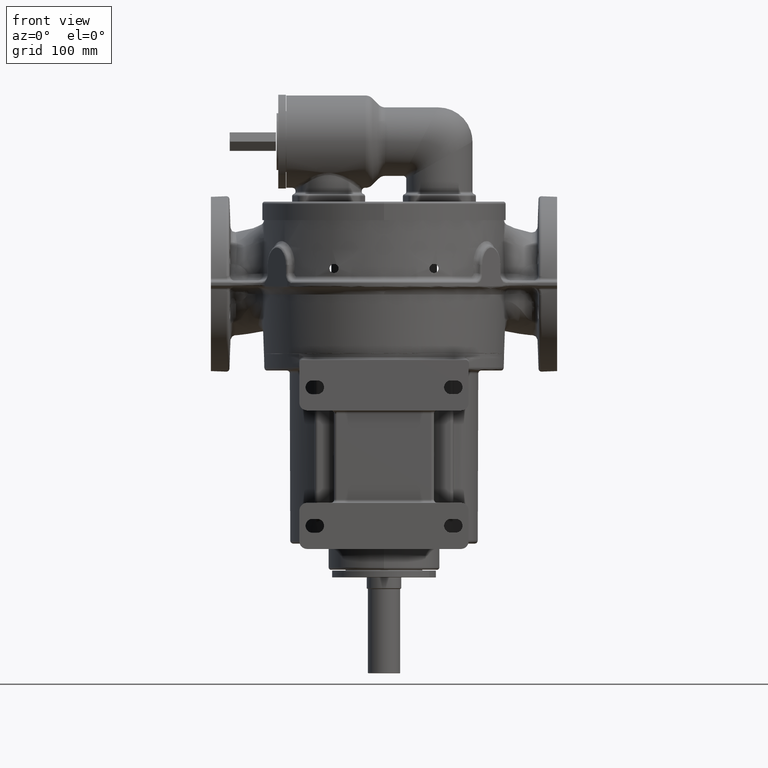
[diagram: clean part render]
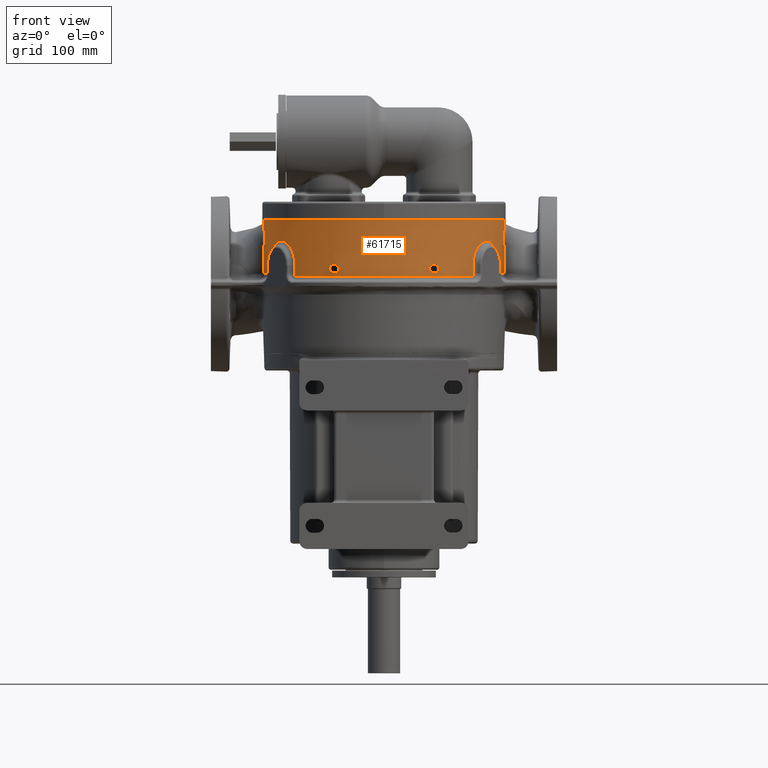
[diagram: same view with one face highlighted and labeled with its STEP entity id]
A machine part, front view. The second image highlights one B-rep face of the part: STEP entity #61715.
In plain terms, the highlighted conical surface has half-angle 2 deg.
Its self-contained STEP definition (entity closure, byte-faithful):
#22151=CARTESIAN_POINT('',(-1.563281663390E2,1.711657789076E2,
1.729627854459E2));
#22152=CARTESIAN_POINT('',(-1.563316676348E2,1.712701733898E2,
1.730313485904E2));
#22153=CARTESIAN_POINT('',(-1.563381569873E2,1.714741559773E2,
1.731652804190E2));
#22154=CARTESIAN_POINT('',(-1.563456009081E2,1.717387182422E2,
1.733601342271E2));
#22155=CARTESIAN_POINT('',(-1.563551240209E2,1.720423008471E2,
1.735381835608E2));
#22156=CARTESIAN_POINT('',(-1.563635759110E2,1.723416388368E2,
1.737238831627E2));
#22157=CARTESIAN_POINT('',(-1.563719742744E2,1.726482365182E2,
1.739050123746E2));
#22158=CARTESIAN_POINT('',(-1.563807956751E2,1.729915488627E2,
1.741045011214E2));
#22159=CARTESIAN_POINT('',(-1.563901203730E2,1.733796603988E2,
1.743226677330E2));
#22160=CARTESIAN_POINT('',(-1.563997558906E2,1.738170708522E2,
1.745606279420E2));
#22161=CARTESIAN_POINT('',(-1.564095106912E2,1.743101654888E2,
1.748189022928E2));
#22162=CARTESIAN_POINT('',(-1.564192102640E2,1.748750923699E2,
1.751031007835E2));
#22163=CARTESIAN_POINT('',(-1.564282834583E2,1.755209852958E2,
1.754135278458E2));
#22164=CARTESIAN_POINT('',(-1.564354263710E2,1.762024394666E2,
1.757252202918E2));
#22165=CARTESIAN_POINT('',(-1.564400393541E2,1.768727785914E2,
1.760178232734E2));
#22166=CARTESIAN_POINT('',(-1.564423212044E2,1.775662993813E2,
1.763071514176E2));
#22167=CARTESIAN_POINT('',(-1.564418854006E2,1.783090173874E2,
1.766024250154E2));
#22168=CARTESIAN_POINT('',(-1.564380431928E2,1.791111335161E2,
1.769051845623E2));
#22169=CARTESIAN_POINT('',(-1.564325426654E2,1.796957943759E2,
1.771135996990E2));
#22170=CARTESIAN_POINT('',(-1.564288775542E2,1.799999999989E2,
1.772185537303E2));
#22172=CARTESIAN_POINT('',(-1.564288775542E2,1.799999999989E2,
1.772185537303E2));
#22173=CARTESIAN_POINT('',(-1.564254138181E2,1.802874220039E2,
1.773177233661E2));
#22174=CARTESIAN_POINT('',(-1.564169931020E2,1.808723688592E2,
1.775135131763E2));
#22175=CARTESIAN_POINT('',(-1.563994003735E2,1.817797019996E2,
1.777987131722E2));
#22176=CARTESIAN_POINT('',(-1.563762981784E2,1.827189303986E2,
1.780752704890E2));
#22177=CARTESIAN_POINT('',(-1.563470980569E2,1.836913764810E2,
1.783426560491E2));
#22178=CARTESIAN_POINT('',(-1.563110817528E2,1.847001256482E2,
1.786009146010E2));
#22179=CARTESIAN_POINT('',(-1.562676415999E2,1.857431459709E2,
1.788487742837E2));
#22180=CARTESIAN_POINT('',(-1.562165532085E2,1.868123196035E2,
1.790830087753E2));
#22181=CARTESIAN_POINT('',(-1.561577580280E2,1.878990446284E2,
1.793010983083E2));
#22182=CARTESIAN_POINT('',(-1.561133605367E2,1.886342752287E2,
1.794355197489E2));
#22183=CARTESIAN_POINT('',(-1.560897290777E2,1.890046398121E2,1.795E2));
#22185=CARTESIAN_POINT('',(0.E0,1.8E2,1.795E2));
#22186=DIRECTION('',(0.E0,0.E0,1.E0));
#22187=DIRECTION('',(-9.983401391140E-1,5.759311272924E-2,0.E0));
#22188=AXIS2_PLACEMENT_3D('',#22185,#22186,#22187);
#22190=CARTESIAN_POINT('',(1.564288775542E2,1.799999999998E2,1.772185537306E2));
#22191=CARTESIAN_POINT('',(1.564261504457E2,1.802260901885E2,1.772965782833E2));
#22192=CARTESIAN_POINT('',(1.564198264936E2,1.806808747533E2,1.774497683775E2));
#22193=CARTESIAN_POINT('',(1.564075356015E2,1.813730889913E2,1.776718551048E2));
#22194=CARTESIAN_POINT('',(1.563924681828E2,1.820684033402E2,1.778842372167E2));
#22195=CARTESIAN_POINT('',(1.563747766089E2,1.827591437949E2,1.780851292557E2));
#22196=CARTESIAN_POINT('',(1.563545848436E2,1.834435361673E2,1.782748344274E2));
#22197=CARTESIAN_POINT('',(1.563309077177E2,1.841519501523E2,1.784617372310E2));
#22198=CARTESIAN_POINT('',(1.563021632227E2,1.849167955028E2,1.786530470904E2));
#22199=CARTESIAN_POINT('',(1.562658441670E2,1.857772516790E2,1.788556991449E2));
#22200=CARTESIAN_POINT('',(1.562194216071E2,1.867541951813E2,1.790702659866E2));
#22201=CARTESIAN_POINT('',(1.561613318884E2,1.878376517454E2,1.792892879611E2));
#22202=CARTESIAN_POINT('',(1.561151378783E2,1.886061461437E2,1.794306385935E2));
#22203=CARTESIAN_POINT('',(1.560897209564E2,1.890041082475E2,1.795E2));
#22205=CARTESIAN_POINT('',(1.563281479471E2,1.711657304574E2,1.729627936387E2));
#22206=CARTESIAN_POINT('',(1.563317153512E2,1.712726447200E2,1.730335388502E2));
#22207=CARTESIAN_POINT('',(1.563383733004E2,1.714819682029E2,1.731715926385E2));
#22208=CARTESIAN_POINT('',(1.563460838821E2,1.717536330103E2,1.733689519750E2));
#22209=CARTESIAN_POINT('',(1.563559066885E2,1.720688963575E2,1.735546785107E2));
#22210=CARTESIAN_POINT('',(1.563646070468E2,1.723784162850E2,1.737459745274E2));
#22211=CARTESIAN_POINT('',(1.563732642910E2,1.726969332927E2,1.739336508809E2));
#22212=CARTESIAN_POINT('',(1.563823705131E2,1.730548774786E2,1.741406378271E2));
#22213=CARTESIAN_POINT('',(1.563919415345E2,1.734590510059E2,1.743665236658E2));
#22214=CARTESIAN_POINT('',(1.564017530205E2,1.739129510091E2,1.746117127514E2));
#22215=CARTESIAN_POINT('',(1.564117853615E2,1.744338984602E2,1.748822894809E2));
#22216=CARTESIAN_POINT('',(1.564215189732E2,1.750258857153E2,1.751768942238E2));
#22217=CARTESIAN_POINT('',(1.564300348446E2,1.756698359209E2,1.754828000926E2));
#22218=CARTESIAN_POINT('',(1.564366258427E2,1.763446250896E2,1.757885158854E2));
#22219=CARTESIAN_POINT('',(1.564408944594E2,1.770493873232E2,1.760929420417E2));
#22220=CARTESIAN_POINT('',(1.564424494430E2,1.777504474911E2,1.763815226936E2));
#22221=CARTESIAN_POINT('',(1.564413711095E2,1.784480910303E2,1.766556245221E2));
#22222=CARTESIAN_POINT('',(1.564374221316E2,1.791819270285E2,1.769306148297E2));
#22223=CARTESIAN_POINT('',(1.564322467356E2,1.797203555058E2,1.771220735506E2));
#22224=CARTESIAN_POINT('',(1.564288775542E2,1.799999999998E2,1.772185537306E2));
#22226=CARTESIAN_POINT('',(1.555648175189E2,1.577286957883E2,1.565408920816E2));
#22227=CARTESIAN_POINT('',(1.555407485958E2,1.577889926747E2,1.574657325001E2));
#22228=CARTESIAN_POINT('',(1.555302114077E2,1.581643874726E2,1.593007381832E2));
#22229=CARTESIAN_POINT('',(1.556199465304E2,1.595375564684E2,1.621117535963E2));
#22230=CARTESIAN_POINT('',(1.557692234325E2,1.614414426639E2,1.646826898901E2));
#22231=CARTESIAN_POINT('',(1.559154218291E2,1.633927834492E2,1.667743969730E2));
#22232=CARTESIAN_POINT('',(1.560373507290E2,1.651917922127E2,1.684445436049E2));
#22233=CARTESIAN_POINT('',(1.561365398131E2,1.668449732013E2,1.698243081134E2));
#22234=CARTESIAN_POINT('',(1.562157785514E2,1.683654976610E2,1.709993437725E2));
#22235=CARTESIAN_POINT('',(1.562798204490E2,1.697945618178E2,1.720057388027E2));
#22236=CARTESIAN_POINT('',(1.563136517035E2,1.707110703234E2,1.726593394960E2));
#22237=CARTESIAN_POINT('',(1.563281479471E2,1.711657304574E2,1.729627936387E2));
#22239=CARTESIAN_POINT('',(1.568781124E2,1.555568943067E2,1.101510050330E2));
#22240=CARTESIAN_POINT('',(1.568093768485E2,1.556157589995E2,1.124104622314E2));
#22241=CARTESIAN_POINT('',(1.566659360185E2,1.557538029934E2,1.169956593009E2));
#22242=CARTESIAN_POINT('',(1.564481773486E2,1.559906422579E2,1.242247850027E2));
#22243=CARTESIAN_POINT('',(1.562422026598E2,1.562923520476E2,1.313511948082E2));
#22244=CARTESIAN_POINT('',(1.560350852262E2,1.566605385869E2,1.387913432059E2));
#22245=CARTESIAN_POINT('',(1.558008273939E2,1.571483128158E2,1.474751896027E2));
#22246=CARTESIAN_POINT('',(1.556445761183E2,1.575244093590E2,1.534521250349E2));
#22247=CARTESIAN_POINT('',(1.555648174359E2,1.577286957991E2,1.565408921094E2));
#22249=CARTESIAN_POINT('',(1.237421166919E-14,1.8E2,1.101510050330E2));
#22250=DIRECTION('',(0.E0,0.E0,-1.E0));
#22251=DIRECTION('',(9.880783239921E-1,-1.539520238808E-1,0.E0));
#22252=AXIS2_PLACEMENT_3D('',#22249,#22250,#22251);
#22254=CARTESIAN_POINT('',(1.480713244815E2,1.227017414401E2,1.101510048898E2));
#22255=CARTESIAN_POINT('',(1.480706639918E2,1.227015346642E2,1.101665073149E2));
#22256=CARTESIAN_POINT('',(1.480694080327E2,1.227012897221E2,1.101975180907E2));
#22257=CARTESIAN_POINT('',(1.480677124338E2,1.227014112335E2,1.102440571323E2));
#22258=CARTESIAN_POINT('',(1.480667102716E2,1.227018239481E2,1.102750865051E2));
#22259=CARTESIAN_POINT('',(1.480662410385E2,1.227021127823E2,1.102906030198E2));
#22261=CARTESIAN_POINT('',(1.480662410385E2,1.227021127823E2,1.102906030198E2));
#22262=CARTESIAN_POINT('',(1.480292799612E2,1.227248640027E2,1.115128252759E2));
#22263=CARTESIAN_POINT('',(1.479553566275E2,1.227703666445E2,1.139572697596E2));
#22264=CARTESIAN_POINT('',(1.478444680806E2,1.228386212129E2,1.176239364538E2));
#22265=CARTESIAN_POINT('',(1.477705400158E2,1.228841246603E2,1.200683807861E2));
#22266=CARTESIAN_POINT('',(1.477335753888E2,1.229068764862E2,1.212906029742E2));
#22268=CARTESIAN_POINT('',(1.477335753888E2,1.229068764862E2,1.212906029742E2));
#22269=CARTESIAN_POINT('',(1.477253996080E2,1.229118704958E2,1.215605545536E2));
#22270=CARTESIAN_POINT('',(1.477064934265E2,1.229153486994E2,1.221014423294E2));
#22271=CARTESIAN_POINT('',(1.476703931850E2,1.229008896925E2,1.229164299935E2));
#22272=CARTESIAN_POINT('',(1.476265735885E2,1.228666418969E2,1.237329711741E2));
#22273=CARTESIAN_POINT('',(1.475750597322E2,1.228125906841E2,1.245497093614E2));
#22274=CARTESIAN_POINT('',(1.475159051530E2,1.227388011423E2,1.253650887137E2));
#22275=CARTESIAN_POINT('',(1.474491852702E2,1.226454228978E2,1.261776128566E2));
#22276=CARTESIAN_POINT('',(1.473749979459E2,1.225326851060E2,1.269857835600E2));
#22277=CARTESIAN_POINT('',(1.472934682899E2,1.224009081304E2,1.277881160711E2));
#22278=CARTESIAN_POINT('',(1.472046051970E2,1.222502509148E2,1.285843448681E2));
#22279=CARTESIAN_POINT('',(1.471083923163E2,1.220808301359E2,1.293742266818E2));
#22280=CARTESIAN_POINT('',(1.470047913042E2,1.218927205347E2,1.301574542751E2));
#22281=CARTESIAN_POINT('',(1.468937474129E2,1.216859997664E2,1.309339745073E2));
#22282=CARTESIAN_POINT('',(1.467751919939E2,1.214607573779E2,1.317040188031E2));
#22283=CARTESIAN_POINT('',(1.466490212922E2,1.212170071541E2,1.324677392094E2));
#22284=CARTESIAN_POINT('',(1.465150996227E2,1.209547023269E2,1.332252540506E2));
#22285=CARTESIAN_POINT('',(1.463735528089E2,1.206743211305E2,1.339751450600E2));
#22286=CARTESIAN_POINT('',(1.462245276069E2,1.203764113808E2,1.347160917314E2));
#22287=CARTESIAN_POINT('',(1.460682338673E2,1.200616697130E2,1.354466539100E2));
#22288=CARTESIAN_POINT('',(1.459047414767E2,1.197305279030E2,1.361662036459E2));
#22289=CARTESIAN_POINT('',(1.457339833467E2,1.193831463848E2,1.368746792621E2));
#22290=CARTESIAN_POINT('',(1.455559033694E2,1.190197118992E2,1.375718767670E2));
#22291=CARTESIAN_POINT('',(1.453704246400E2,1.186403750517E2,1.382576100176E2));
#22292=CARTESIAN_POINT('',(1.451775005533E2,1.182453732969E2,1.389317282136E2));
#22293=CARTESIAN_POINT('',(1.449770797706E2,1.178349372022E2,1.395940314302E2));
#22294=CARTESIAN_POINT('',(1.447690572619E2,1.174091918216E2,1.402444209831E2));
#22295=CARTESIAN_POINT('',(1.445535564520E2,1.169687340006E2,1.408820541137E2));
#22296=CARTESIAN_POINT('',(1.443308340086E2,1.165144334351E2,1.415058103029E2));
#22297=CARTESIAN_POINT('',(1.441011708082E2,1.160472048256E2,1.421146496120E2));
#22298=CARTESIAN_POINT('',(1.438648047869E2,1.155678670572E2,1.427077867109E2));
#22299=CARTESIAN_POINT('',(1.436216672278E2,1.150766104703E2,1.432852377397E2));
#22300=CARTESIAN_POINT('',(1.433717163802E2,1.145736790091E2,1.438468916902E2));
#22301=CARTESIAN_POINT('',(1.431148824559E2,1.140592567637E2,1.443926351498E2));
#22302=CARTESIAN_POINT('',(1.428511272840E2,1.135336026016E2,1.449223891298E2));
#22303=CARTESIAN_POINT('',(1.425804261411E2,1.129970022307E2,1.454360561404E2));
#22304=CARTESIAN_POINT('',(1.423027050215E2,1.124496396650E2,1.459335757603E2));
#22305=CARTESIAN_POINT('',(1.420180384654E2,1.118919891406E2,1.464145855822E2));
#22306=CARTESIAN_POINT('',(1.417268450407E2,1.113251827334E2,1.468782092511E2));
#22307=CARTESIAN_POINT('',(1.414295150057E2,1.107502702227E2,1.473237503580E2));
#22308=CARTESIAN_POINT('',(1.411265167494E2,1.101684220506E2,1.477505254557E2));
#22309=CARTESIAN_POINT('',(1.408178704430E2,1.095799233311E2,1.481585536907E2));
#22310=CARTESIAN_POINT('',(1.405035465236E2,1.089849584231E2,1.485478760983E2));
#22311=CARTESIAN_POINT('',(1.401835112573E2,1.083836964302E2,1.489184786881E2));
#22312=CARTESIAN_POINT('',(1.398577407480E2,1.077763257305E2,1.492703740203E2));
#22313=CARTESIAN_POINT('',(1.395262321369E2,1.071630744357E2,1.496036057832E2));
#22314=CARTESIAN_POINT('',(1.391889707411E2,1.065441391902E2,1.499181723893E2));
#22315=CARTESIAN_POINT('',(1.388459368474E2,1.059197034543E2,1.502140314899E2));
#22316=CARTESIAN_POINT('',(1.384976276461E2,1.052908736439E2,1.504907076694E2));
#22317=CARTESIAN_POINT('',(1.381445470057E2,1.046587298056E2,1.507478239694E2));
#22318=CARTESIAN_POINT('',(1.377873080357E2,1.040245070907E2,1.509850266175E2));
#22319=CARTESIAN_POINT('',(1.374261380372E2,1.033887188931E2,1.512022989224E2));
#22320=CARTESIAN_POINT('',(1.370609398765E2,1.027512969315E2,1.513997907165E2));
#22321=CARTESIAN_POINT('',(1.366916760900E2,1.021122761529E2,1.515775499784E2));
#22322=CARTESIAN_POINT('',(1.363182858416E2,1.014716486924E2,1.517355964352E2));
#22323=CARTESIAN_POINT('',(1.359407315707E2,1.008294552573E2,1.518740344898E2));
#22324=CARTESIAN_POINT('',(1.355589928635E2,1.001857601146E2,1.519929028919E2));
#22325=CARTESIAN_POINT('',(1.351729575513E2,9.954047213722E1,1.520922088256E2));
#22326=CARTESIAN_POINT('',(1.347829901259E2,9.889428931850E1,1.521717994990E2));
#22327=CARTESIAN_POINT('',(1.343897776572E2,9.824840869777E1,1.522315207385E2));
#22328=CARTESIAN_POINT('',(1.339939805790E2,9.760393987940E1,1.522713137419E2));
#22329=CARTESIAN_POINT('',(1.335962139591E2,9.696187598962E1,1.522912113517E2));
#22330=CARTESIAN_POINT('',(1.331964168179E2,9.632209583951E1,1.522912953626E2));
#22331=CARTESIAN_POINT('',(1.327945816582E2,9.568456632990E1,1.522715814396E2));
#22332=CARTESIAN_POINT('',(1.323906870125E2,9.504922800693E1,1.522320084256E2));
#22333=CARTESIAN_POINT('',(1.319847099859E2,9.441602601360E1,1.521725769055E2));
#22334=CARTESIAN_POINT('',(1.315766328081E2,9.378491632361E1,1.520932984686E2));
#22335=CARTESIAN_POINT('',(1.311664252118E2,9.315583265104E1,1.519941089029E2));
#22336=CARTESIAN_POINT('',(1.307541397018E2,9.252883577790E1,1.518749026241E2));
#22337=CARTESIAN_POINT('',(1.303405470325E2,9.190505895841E1,1.517357855361E2));
#22338=CARTESIAN_POINT('',(1.299263535910E2,9.128549725783E1,1.515769274668E2));
#22339=CARTESIAN_POINT('',(1.295123819386E2,9.067128097444E1,1.513986222110E2));
#22340=CARTESIAN_POINT('',(1.290989539747E2,9.006276511567E1,1.512010077573E2));
#22341=CARTESIAN_POINT('',(1.286860973670E2,8.945986400948E1,1.509840469444E2));
#22342=CARTESIAN_POINT('',(1.282739209187E2,8.886260818751E1,1.507476799334E2));
#22343=CARTESIAN_POINT('',(1.278625226922E2,8.827100838529E1,1.504918059895E2));
#22344=CARTESIAN_POINT('',(1.274519647685E2,8.768502995181E1,1.502164048025E2));
#22345=CARTESIAN_POINT('',(1.270423506932E2,8.710469307456E1,1.499214204186E2));
#22346=CARTESIAN_POINT('',(1.266337105851E2,8.652991174360E1,1.496066834372E2));
#22347=CARTESIAN_POINT('',(1.262265659820E2,8.596128318472E1,1.492723603437E2));
#22348=CARTESIAN_POINT('',(1.258217540540E2,8.539981840968E1,1.489189326910E2));
#22349=CARTESIAN_POINT('',(1.254200486039E2,8.484640984054E1,1.485469112464E2));
#22350=CARTESIAN_POINT('',(1.250221848034E2,8.430186919545E1,1.481568528389E2));
#22351=CARTESIAN_POINT('',(1.246283548942E2,8.376624851824E1,1.477488070214E2));
#22352=CARTESIAN_POINT('',(1.242388005182E2,8.323966396237E1,1.473228272358E2));
#22353=CARTESIAN_POINT('',(1.238537778105E2,8.272224343038E1,1.468789204521E2));
#22354=CARTESIAN_POINT('',(1.234735084398E2,8.221407013794E1,1.464171344456E2));
#22355=CARTESIAN_POINT('',(1.230982084833E2,8.171521998011E1,1.459375449001E2));
#22356=CARTESIAN_POINT('',(1.227280846190E2,8.122575140892E1,1.454401495911E2));
#22357=CARTESIAN_POINT('',(1.223634956787E2,8.074591978975E1,1.449251045367E2));
#22358=CARTESIAN_POINT('',(1.220052747421E2,8.027659212846E1,1.443932698856E2));
#22359=CARTESIAN_POINT('',(1.216541550855E2,7.981848770854E1,1.438454724005E2));
#22360=CARTESIAN_POINT('',(1.213108947382E2,7.937234502642E1,1.432826904434E2));
#22361=CARTESIAN_POINT('',(1.209757565860E2,7.893825141798E1,1.427051558058E2));
#22362=CARTESIAN_POINT('',(1.206489614502E2,7.851624044021E1,1.421129817698E2));
#22363=CARTESIAN_POINT('',(1.203307751270E2,7.810640148705E1,1.415062854235E2));
#22364=CARTESIAN_POINT('',(1.200213997934E2,7.770874941230E1,1.408851542873E2));
#22365=CARTESIAN_POINT('',(1.197210193312E2,7.732328225759E1,1.402496880377E2));
#22366=CARTESIAN_POINT('',(1.194297938899E2,7.694996710852E1,1.395998280761E2));
#22367=CARTESIAN_POINT('',(1.191481829023E2,7.658915468988E1,1.389361359381E2));
#22368=CARTESIAN_POINT('',(1.188768622647E2,7.624147236666E1,1.382597787792E2));
#22369=CARTESIAN_POINT('',(1.186164494122E2,7.590747489935E1,1.375719662257E2));
#22370=CARTESIAN_POINT('',(1.183673229036E2,7.558741564576E1,1.368734199322E2));
#22371=CARTESIAN_POINT('',(1.181296591898E2,7.528129374264E1,1.361643072832E2));
#22372=CARTESIAN_POINT('',(1.179037033673E2,7.498919881681E1,1.354449020733E2));
#22373=CARTESIAN_POINT('',(1.176896425859E2,7.471115890042E1,1.347154207339E2));
#22374=CARTESIAN_POINT('',(1.174876516479E2,7.444719752148E1,1.339761068029E2));
#22375=CARTESIAN_POINT('',(1.172978912394E2,7.419732210615E1,1.332270344818E2));
#22376=CARTESIAN_POINT('',(1.171207346223E2,7.396182637495E1,1.324691017140E2));
#22377=CARTESIAN_POINT('',(1.169566192528E2,7.374110550476E1,1.317037071668E2));
#22378=CARTESIAN_POINT('',(1.168059265779E2,7.353550474651E1,1.309323849371E2));
#22379=CARTESIAN_POINT('',(1.166687310330E2,7.334497093144E1,1.301553326767E2));
#22380=CARTESIAN_POINT('',(1.165450403878E2,7.316935926083E1,1.293721518891E2));
#22381=CARTESIAN_POINT('',(1.164349466360E2,7.300863101683E1,1.285824858917E2));
#22382=CARTESIAN_POINT('',(1.163385371754E2,7.286278293795E1,1.277865463203E2));
#22383=CARTESIAN_POINT('',(1.162559193840E2,7.273185512471E1,1.269847505843E2));
#22384=CARTESIAN_POINT('',(1.161872065276E2,7.261589500575E1,1.261773208949E2));
#22385=CARTESIAN_POINT('',(1.161325840259E2,7.251507669574E1,1.253652111657E2));
#22386=CARTESIAN_POINT('',(1.160922357844E2,7.242961915275E1,1.245500700990E2));
#22387=CARTESIAN_POINT('',(1.160662675139E2,7.235966056857E1,1.237333982851E2));
#22388=CARTESIAN_POINT('',(1.160547211076E2,7.230528786427E1,1.229167968983E2));
#22389=CARTESIAN_POINT('',(1.160575779773E2,7.226652300040E1,1.221016528585E2));
#22390=CARTESIAN_POINT('',(1.160690114349E2,7.225107169529E1,1.215606315017E2));
#22391=CARTESIAN_POINT('',(1.160770963609E2,7.224592003065E1,1.212906029833E2));
#22393=CARTESIAN_POINT('',(1.160770963609E2,7.224592003065E1,1.212906029833E2));
#22394=CARTESIAN_POINT('',(1.161137497929E2,7.222267018777E1,1.200683807824E2));
#22395=CARTESIAN_POINT('',(1.161870559521E2,7.217617148122E1,1.176239364196E2));
#22396=CARTESIAN_POINT('',(1.162970130911E2,7.210642634895E1,1.139572697308E2));
#22397=CARTESIAN_POINT('',(1.163703164507E2,7.205993154233E1,1.115128252630E2));
#22398=CARTESIAN_POINT('',(1.164069677816E2,7.203668462487E1,1.102906030198E2));
#22400=CARTESIAN_POINT('',(1.164069677816E2,7.203668462487E1,1.102906030198E2));
#22401=CARTESIAN_POINT('',(1.164086810343E2,7.203558517874E1,1.102332207346E2));
#22402=CARTESIAN_POINT('',(1.164104404421E2,7.203159299394E1,1.101185423857E2));
#22403=CARTESIAN_POINT('',(1.164081202107E2,7.202026191184E1,1.099465993333E2));
#22404=CARTESIAN_POINT('',(1.164008645414E2,7.200364402984E1,1.097752846899E2));
#22405=CARTESIAN_POINT('',(1.163887058459E2,7.198179582740E1,1.096049502218E2));
#22406=CARTESIAN_POINT('',(1.163716778348E2,7.195477902599E1,1.094359970936E2));
#22407=CARTESIAN_POINT('',(1.163498170763E2,7.192265891243E1,1.092688097238E2));
#22408=CARTESIAN_POINT('',(1.163231635865E2,7.188550555467E1,1.091037686695E2));
#22409=CARTESIAN_POINT('',(1.162917569128E2,7.184339029210E1,1.089412652274E2));
#22410=CARTESIAN_POINT('',(1.162556789971E2,7.179642122991E1,1.087814965504E2));
#22411=CARTESIAN_POINT('',(1.162150079709E2,7.174470251465E1,1.086246434783E2));
#22412=CARTESIAN_POINT('',(1.161698044111E2,7.168831995773E1,1.084708786516E2));
#22413=CARTESIAN_POINT('',(1.161201436452E2,7.162738034805E1,1.083204578425E2));
#22414=CARTESIAN_POINT('',(1.160661295361E2,7.156202573086E1,1.081737141224E2));
#22415=CARTESIAN_POINT('',(1.160078658490E2,7.149239746052E1,1.080309587464E2));
#22416=CARTESIAN_POINT('',(1.159454645768E2,7.141864562315E1,1.078924930950E2));
#22417=CARTESIAN_POINT('',(1.158790640844E2,7.134094410941E1,1.077585281397E2));
#22418=CARTESIAN_POINT('',(1.158087994001E2,7.125946351991E1,1.076292790013E2));
#22419=CARTESIAN_POINT('',(1.157348046302E2,7.117437332761E1,1.075049584472E2));
#22420=CARTESIAN_POINT('',(1.156572181360E2,7.108584777453E1,1.073857867628E2));
#22421=CARTESIAN_POINT('',(1.155761774168E2,7.099405979164E1,1.072719815416E2));
#22422=CARTESIAN_POINT('',(1.154918197489E2,7.089918145206E1,1.071637551229E2));
#22423=CARTESIAN_POINT('',(1.154042711382E2,7.080136646620E1,1.070612016513E2));
#22424=CARTESIAN_POINT('',(1.153136433598E2,7.070075340334E1,1.069644210037E2));
#22425=CARTESIAN_POINT('',(1.152200658064E2,7.059750092833E1,1.068735503455E2));
#22426=CARTESIAN_POINT('',(1.151237394421E2,7.049184573148E1,1.067887937782E2));
#22427=CARTESIAN_POINT('',(1.150248614107E2,7.038401865706E1,1.067103441128E2));
#22428=CARTESIAN_POINT('',(1.149236259054E2,7.027424330498E1,1.066383376371E2));
#22429=CARTESIAN_POINT('',(1.148202142476E2,7.016272616022E1,1.065728643239E2));
#22430=CARTESIAN_POINT('',(1.147148213369E2,7.004968705214E1,1.065140243335E2));
#22431=CARTESIAN_POINT('',(1.146075492586E2,6.993524507379E1,1.064618662123E2));
#22432=CARTESIAN_POINT('',(1.144984714314E2,6.981948945436E1,1.064164510322E2));
#22433=CARTESIAN_POINT('',(1.143876727379E2,6.970252204456E1,1.063778629297E2));
#22434=CARTESIAN_POINT('',(1.142754051614E2,6.958461597651E1,1.063461661829E2));
#22435=CARTESIAN_POINT('',(1.141619134059E2,6.946603447887E1,1.063214207418E2));
#22436=CARTESIAN_POINT('',(1.140474564630E2,6.934705315491E1,1.063036812629E2));
#22437=CARTESIAN_POINT('',(1.139322609728E2,6.922791192885E1,1.062929973006E2));
#22438=CARTESIAN_POINT('',(1.138552103870E2,6.914862630127E1,1.062906080211E2));
#22439=CARTESIAN_POINT('',(1.138166016573E2,6.910899867263E1,1.062906030197E2));
#22441=CARTESIAN_POINT('',(1.289360057097E-14,1.8E2,1.062906030198E2));
#22442=DIRECTION('',(0.E0,0.E0,-1.E0));
#22443=DIRECTION('',(7.162523166019E-1,-6.978413995761E-1,0.E0));
#22444=AXIS2_PLACEMENT_3D('',#22441,#22442,#22443);
#22446=CARTESIAN_POINT('',(-1.138166016574E2,6.910899867274E1,
1.062906030197E2));
#22447=CARTESIAN_POINT('',(-1.138552542320E2,6.914867121980E1,
1.062906064757E2));
#22448=CARTESIAN_POINT('',(-1.139323750738E2,6.922802892139E1,
1.062929910914E2));
#22449=CARTESIAN_POINT('',(-1.140476214661E2,6.934722236618E1,
1.063036646293E2));
#22450=CARTESIAN_POINT('',(-1.141620819984E2,6.946620721338E1,
1.063213927210E2));
#22451=CARTESIAN_POINT('',(-1.142755337814E2,6.958474727624E1,
1.063461292702E2));
#22452=CARTESIAN_POINT('',(-1.143877261173E2,6.970257548837E1,
1.063778233216E2));
#22453=CARTESIAN_POINT('',(-1.144984078325E2,6.981942192577E1,
1.064164213583E2));
#22454=CARTESIAN_POINT('',(-1.146074766809E2,6.993516858938E1,
1.064618489816E2));
#22455=CARTESIAN_POINT('',(-1.147148629500E2,7.004973209196E1,
1.065140586293E2));
#22456=CARTESIAN_POINT('',(-1.148204147592E2,7.016294188760E1,
1.065729873085E2));
#22457=CARTESIAN_POINT('',(-1.149239253547E2,7.027456727619E1,
1.066385429548E2));
#22458=CARTESIAN_POINT('',(-1.150252037383E2,7.038439203543E1,1.06710624E2));
#22459=CARTESIAN_POINT('',(-1.151240647152E2,7.049220227520E1,
1.067890811576E2));
#22460=CARTESIAN_POINT('',(-1.152203255933E2,7.059778563707E1,
1.068737682843E2));
#22461=CARTESIAN_POINT('',(-1.153138093585E2,7.070093466921E1,
1.069645406168E2));
#22462=CARTESIAN_POINT('',(-1.154043451463E2,7.080144729062E1,
1.070612520465E2));
#22463=CARTESIAN_POINT('',(-1.154918188146E2,7.089918042092E1,
1.071637534827E2));
#22464=CARTESIAN_POINT('',(-1.155761072028E2,7.099398129064E1,
1.072719010999E2));
#22465=CARTESIAN_POINT('',(-1.156570836312E2,7.108569362044E1,
1.073855638120E2));
#22466=CARTESIAN_POINT('',(-1.157346140217E2,7.117415171043E1,
1.075045869759E2));
#22467=CARTESIAN_POINT('',(-1.158085601833E2,7.125918246373E1,
1.076287631945E2));
#22468=CARTESIAN_POINT('',(-1.158787827580E2,7.134061166046E1,
1.077578924893E2));
#22469=CARTESIAN_POINT('',(-1.159451412147E2,7.141826338868E1,
1.078917696197E2));
#22470=CARTESIAN_POINT('',(-1.160075161781E2,7.149198277791E1,
1.080301596910E2));
#22471=CARTESIAN_POINT('',(-1.160657864931E2,7.156161310659E1,
1.081728257107E2));
#22472=CARTESIAN_POINT('',(-1.161198305559E2,7.162699724719E1,
1.083195275316E2));
#22473=CARTESIAN_POINT('',(-1.161695497565E2,7.168800206423E1,
1.084700050201E2));
#22474=CARTESIAN_POINT('',(-1.162148424284E2,7.174449170223E1,
1.086239980876E2));
#22475=CARTESIAN_POINT('',(-1.162556106862E2,7.179633438724E1,
1.087812347480E2));
#22476=CARTESIAN_POINT('',(-1.162917729523E2,7.184341506121E1,
1.089414123476E2));
#22477=CARTESIAN_POINT('',(-1.163232429720E2,7.188561441613E1,
1.091042260911E2));
#22478=CARTESIAN_POINT('',(-1.163499587516E2,7.192284061692E1,
1.092693787340E2));
#22479=CARTESIAN_POINT('',(-1.163718666515E2,7.195501242227E1,
1.094365822621E2));
#22480=CARTESIAN_POINT('',(-1.163889088278E2,7.198204439310E1,
1.096055317720E2));
#22481=CARTESIAN_POINT('',(-1.164010429503E2,7.200386414234E1,
1.097758263888E2));
#22482=CARTESIAN_POINT('',(-1.164082339892E2,7.202040808902E1,
1.099470573687E2));
#22483=CARTESIAN_POINT('',(-1.164104760403E2,7.203164690022E1,
1.101188441395E2));
#22484=CARTESIAN_POINT('',(-1.164086848269E2,7.203559499514E1,
1.102333333873E2));
#22485=CARTESIAN_POINT('',(-1.164069677816E2,7.203668462487E1,
1.102906030198E2));
#22487=CARTESIAN_POINT('',(-1.164069677816E2,7.203668462487E1,
1.102906030198E2));
#22488=CARTESIAN_POINT('',(-1.163703164506E2,7.205993154241E1,
1.115128252667E2));
#22489=CARTESIAN_POINT('',(-1.162970130908E2,7.210642634913E1,
1.139572697401E2));
#22490=CARTESIAN_POINT('',(-1.161870559519E2,7.217617148135E1,
1.176239364265E2));
#22491=CARTESIAN_POINT('',(-1.161137497927E2,7.222267018790E1,
1.200683807900E2));
#22492=CARTESIAN_POINT('',(-1.160770963608E2,7.224592003071E1,
1.212906029872E2));
#22494=CARTESIAN_POINT('',(-1.160770963608E2,7.224592003071E1,
1.212906029872E2));
#22495=CARTESIAN_POINT('',(-1.160690204609E2,7.225107971932E1,
1.215606357864E2));
#22496=CARTESIAN_POINT('',(-1.160576015427E2,7.226654978719E1,
1.221016628245E2));
#22497=CARTESIAN_POINT('',(-1.160547681061E2,7.230533792006E1,
1.229167901095E2));
#22498=CARTESIAN_POINT('',(-1.160663379192E2,7.235973668505E1,
1.237334010586E2));
#22499=CARTESIAN_POINT('',(-1.160923330291E2,7.242972763909E1,
1.245501395298E2));
#22500=CARTESIAN_POINT('',(-1.161327160841E2,7.251523154820E1,
1.253654481527E2));
#22501=CARTESIAN_POINT('',(-1.161873840606E2,7.261611359550E1,
1.261778368223E2));
#22502=CARTESIAN_POINT('',(-1.162561695988E2,7.273217954499E1,
1.269857855017E2));
#22503=CARTESIAN_POINT('',(-1.163388453565E2,7.286318703487E1,
1.277878942277E2));
#22504=CARTESIAN_POINT('',(-1.164352831238E2,7.300907354371E1,
1.285839652485E2));
#22505=CARTESIAN_POINT('',(-1.165453735604E2,7.316980495515E1,
1.293737426796E2));
#22506=CARTESIAN_POINT('',(-1.166690393116E2,7.334539036894E1,
1.301569205262E2));
#22507=CARTESIAN_POINT('',(-1.168061807541E2,7.353584297069E1,
1.309335273723E2));
#22508=CARTESIAN_POINT('',(-1.169566926870E2,7.374118961309E1,
1.317037632189E2));
#22509=CARTESIAN_POINT('',(-1.171205386101E2,7.396154445919E1,
1.324678389732E2));
#22510=CARTESIAN_POINT('',(-1.172976532694E2,7.419698456721E1,
1.332256231448E2));
#22511=CARTESIAN_POINT('',(-1.174876266127E2,7.444714148873E1,
1.339755790791E2));
#22512=CARTESIAN_POINT('',(-1.176900279319E2,7.471164082066E1,
1.347164105259E2));
#22513=CARTESIAN_POINT('',(-1.179043171021E2,7.498998165661E1,
1.354466910465E2));
#22514=CARTESIAN_POINT('',(-1.181302238982E2,7.528202466943E1,
1.361660840080E2));
#22515=CARTESIAN_POINT('',(-1.183675657829E2,7.558774743619E1,
1.368744729370E2));
#22516=CARTESIAN_POINT('',(-1.186161668829E2,7.590713835984E1,
1.375716648839E2));
#22517=CARTESIAN_POINT('',(-1.188758438798E2,7.624018550689E1,
1.382574825403E2));
#22518=CARTESIAN_POINT('',(-1.191463613130E2,7.658682507123E1,
1.389317703041E2));
#22519=CARTESIAN_POINT('',(-1.194275084526E2,7.694702565326E1,
1.395943457103E2));
#22520=CARTESIAN_POINT('',(-1.197190967470E2,7.732078812632E1,
1.402450174685E2));
#22521=CARTESIAN_POINT('',(-1.200205175816E2,7.770757758881E1,
1.408826749925E2));
#22522=CARTESIAN_POINT('',(-1.203311283554E2,7.810681530605E1,
1.415062810048E2));
#22523=CARTESIAN_POINT('',(-1.206501867090E2,7.851779065254E1,
1.421147366668E2));
#22524=CARTESIAN_POINT('',(-1.209772487314E2,7.894017166965E1,
1.427076170411E2));
#22525=CARTESIAN_POINT('',(-1.213121166019E2,7.937394147405E1,
1.432849183362E2));
#22526=CARTESIAN_POINT('',(-1.216545624750E2,7.981904309664E1,
1.438465145252E2));
#22527=CARTESIAN_POINT('',(-1.220043791797E2,8.027544697497E1,
1.443922925201E2));
#22528=CARTESIAN_POINT('',(-1.223613072753E2,8.074306428812E1,
1.449221909749E2));
#22529=CARTESIAN_POINT('',(-1.227250928742E2,8.122180958832E1,
1.454360981615E2));
#22530=CARTESIAN_POINT('',(-1.230955604361E2,8.171169990677E1,
1.459339599185E2));
#22531=CARTESIAN_POINT('',(-1.234720505453E2,8.221210749636E1,
1.464150590044E2));
#22532=CARTESIAN_POINT('',(-1.238537685205E2,8.272220827214E1,
1.468785962388E2));
#22533=CARTESIAN_POINT('',(-1.242398718965E2,8.324109309443E1,
1.473238168459E2));
#22534=CARTESIAN_POINT('',(-1.246297576635E2,8.376815221793E1,
1.477503298984E2));
#22535=CARTESIAN_POINT('',(-1.250232806963E2,8.430338297964E1,
1.481582412086E2));
#22536=CARTESIAN_POINT('',(-1.254202341656E2,8.484669536901E1,
1.485475330843E2));
#22537=CARTESIAN_POINT('',(-1.258204496114E2,8.539804648607E1,
1.489181811220E2));
#22538=CARTESIAN_POINT('',(-1.262237194416E2,8.595734396713E1,
1.492702305841E2));
#22539=CARTESIAN_POINT('',(-1.266298296616E2,8.652447986986E1,
1.496036816472E2));
#22540=CARTESIAN_POINT('',(-1.270386611987E2,8.709947450414E1,
1.499185590347E2));
#22541=CARTESIAN_POINT('',(-1.274496954072E2,8.768177852514E1,
1.502145483161E2));
#22542=CARTESIAN_POINT('',(-1.278621125667E2,8.827039029340E1,
1.504911728222E2));
#22543=CARTESIAN_POINT('',(-1.282751336466E2,8.886433257601E1,
1.507480661961E2));
#22544=CARTESIAN_POINT('',(-1.286880756732E2,8.946273193071E1,
1.509849998138E2));
#22545=CARTESIAN_POINT('',(-1.291009322764E2,9.006567575669E1,
1.512021411728E2));
#22546=CARTESIAN_POINT('',(-1.295136439732E2,9.067317395992E1,
1.513995645129E2));
#22547=CARTESIAN_POINT('',(-1.299261870781E2,9.128528449244E1,
1.515772888588E2));
#22548=CARTESIAN_POINT('',(-1.303385069845E2,9.190202598772E1,
1.517353978434E2));
#22549=CARTESIAN_POINT('',(-1.307505307182E2,9.252338837171E1,
1.518739599753E2));
#22550=CARTESIAN_POINT('',(-1.311622496919E2,9.314945509309E1,
1.519929975830E2));
#22551=CARTESIAN_POINT('',(-1.315734408493E2,9.377998105674E1,
1.520924186580E2));
#22552=CARTESIAN_POINT('',(-1.319833003623E2,9.441380568391E1,
1.521720167154E2));
#22553=CARTESIAN_POINT('',(-1.323911443873E2,9.504991180629E1,
1.522316963163E2));
#22554=CARTESIAN_POINT('',(-1.327962178434E2,9.568712937536E1,
1.522714360247E2));
#22555=CARTESIAN_POINT('',(-1.331984736441E2,9.632537152777E1,
1.522913260286E2));
#22556=CARTESIAN_POINT('',(-1.335979702937E2,9.696471810874E1,
1.522914055828E2));
#22557=CARTESIAN_POINT('',(-1.339947423500E2,9.760520833363E1,
1.522716365996E2));
#22558=CARTESIAN_POINT('',(-1.343888345035E2,9.824690126606E1,
1.522319970699E2));
#22559=CARTESIAN_POINT('',(-1.347802915043E2,9.888986311181E1,
1.521725191468E2));
#22560=CARTESIAN_POINT('',(-1.351691532463E2,9.953414887453E1,
1.520931559172E2));
#22561=CARTESIAN_POINT('',(-1.355554576502E2,1.001798121053E2,
1.519937955598E2));
#22562=CARTESIAN_POINT('',(-1.359385489697E2,1.008257297041E2,
1.518744980325E2));
#22563=CARTESIAN_POINT('',(-1.363178130062E2,1.014708043820E2,
1.517354052624E2));
#22564=CARTESIAN_POINT('',(-1.366925793041E2,1.021137996333E2,
1.515767747757E2));
#22565=CARTESIAN_POINT('',(-1.370626397123E2,1.027542350449E2,
1.513987420784E2));
#22566=CARTESIAN_POINT('',(-1.374280634658E2,1.033921003220E2,
1.512012839002E2));
#22567=CARTESIAN_POINT('',(-1.377888459723E2,1.040272522946E2,
1.509843528632E2));
#22568=CARTESIAN_POINT('',(-1.381450179804E2,1.046596053988E2,
1.507478685652E2));
#22569=CARTESIAN_POINT('',(-1.384966742742E2,1.052891948710E2,
1.504917882683E2));
#22570=CARTESIAN_POINT('',(-1.388439061145E2,1.059160474869E2,
1.502159908042E2));
#22571=CARTESIAN_POINT('',(-1.391867260443E2,1.065400474041E2,
1.499203506594E2));
#22572=CARTESIAN_POINT('',(-1.395245778282E2,1.071600235529E2,
1.496052432890E2));
#22573=CARTESIAN_POINT('',(-1.398569759749E2,1.077748938299E2,
1.492710924248E2));
#22574=CARTESIAN_POINT('',(-1.401834667321E2,1.083835985540E2,
1.489183934342E2));
#22575=CARTESIAN_POINT('',(-1.405040201683E2,1.089858433348E2,
1.485472377067E2));
#22576=CARTESIAN_POINT('',(-1.408185900632E2,1.095812954582E2,
1.481577029621E2));
#22577=CARTESIAN_POINT('',(-1.411271295952E2,1.101696089521E2,
1.477498497276E2));
#22578=CARTESIAN_POINT('',(-1.414298567289E2,1.107509473537E2,
1.473234671497E2));
#22579=CARTESIAN_POINT('',(-1.417269839954E2,1.113254718747E2,
1.468782246690E2));
#22580=CARTESIAN_POINT('',(-1.420179676065E2,1.118918696489E2,
1.464149093726E2));
#22581=CARTESIAN_POINT('',(-1.423022750412E2,1.124488103524E2,
1.459344902299E2));
#22582=CARTESIAN_POINT('',(-1.425798643211E2,1.129959016245E2,
1.454372135962E2));
#22583=CARTESIAN_POINT('',(-1.428507051500E2,1.135327679046E2,
1.449232841867E2));
#22584=CARTESIAN_POINT('',(-1.431147616213E2,1.140590149572E2,
1.443929085704E2));
#22585=CARTESIAN_POINT('',(-1.433719969756E2,1.145742396064E2,
1.438462790300E2));
#22586=CARTESIAN_POINT('',(-1.436223458067E2,1.150779844372E2,
1.432837642594E2));
#22587=CARTESIAN_POINT('',(-1.438657445128E2,1.155697897529E2,
1.427057446756E2));
#22588=CARTESIAN_POINT('',(-1.441021344819E2,1.160492007035E2,
1.421125992338E2));
#22589=CARTESIAN_POINT('',(-1.443314493225E2,1.165157422868E2,
1.415047379456E2));
#22590=CARTESIAN_POINT('',(-1.445536149318E2,1.169689200967E2,
1.408826090914E2));
#22591=CARTESIAN_POINT('',(-1.447685632793E2,1.174082493853E2,
1.402466628512E2));
#22592=CARTESIAN_POINT('',(-1.449762297948E2,1.178332512285E2,
1.395973616001E2));
#22593=CARTESIAN_POINT('',(-1.451766018882E2,1.182435652222E2,
1.389351454316E2));
#22594=CARTESIAN_POINT('',(-1.453696646162E2,1.186388287538E2,
1.382604535977E2));
#22595=CARTESIAN_POINT('',(-1.455554022135E2,1.190186811402E2,
1.375737244291E2));
#22596=CARTESIAN_POINT('',(-1.457337887336E2,1.193827450599E2,
1.368754274474E2));
#22597=CARTESIAN_POINT('',(-1.459047972154E2,1.197306468441E2,
1.361660387900E2));
#22598=CARTESIAN_POINT('',(-1.460683946362E2,1.200620049043E2,
1.354460386233E2));
#22599=CARTESIAN_POINT('',(-1.462245840465E2,1.203765329747E2,
1.347159004671E2));
#22600=CARTESIAN_POINT('',(-1.463733711345E2,1.206739620576E2,
1.339760942661E2));
#22601=CARTESIAN_POINT('',(-1.465147562526E2,1.209540205943E2,
1.332270735615E2));
#22602=CARTESIAN_POINT('',(-1.466487068161E2,1.212163821350E2,
1.324694454405E2));
#22603=CARTESIAN_POINT('',(-1.467751847875E2,1.214607225196E2,
1.317038539972E2));
#22604=CARTESIAN_POINT('',(-1.468941525038E2,1.216867316385E2,
1.309309383529E2));
#22605=CARTESIAN_POINT('',(-1.470055982226E2,1.218941841006E2,
1.301513815305E2));
#22606=CARTESIAN_POINT('',(-1.471095115761E2,1.220828749565E2,
1.293658610715E2));
#22607=CARTESIAN_POINT('',(-1.472058778489E2,1.222526104796E2,
1.285750964698E2));
#22608=CARTESIAN_POINT('',(-1.472947248149E2,1.224032871946E2,
1.277794144549E2));
#22609=CARTESIAN_POINT('',(-1.473760708916E2,1.225347933426E2,
1.269790858205E2));
#22610=CARTESIAN_POINT('',(-1.474499145570E2,1.226469836544E2,
1.261743464561E2));
#22611=CARTESIAN_POINT('',(-1.475162544814E2,1.227397713266E2,
1.253658126988E2));
#22612=CARTESIAN_POINT('',(-1.475750828581E2,1.228130836986E2,
1.245541908669E2));
#22613=CARTESIAN_POINT('',(-1.476263842304E2,1.228668480386E2,
1.237401585150E2));
#22614=CARTESIAN_POINT('',(-1.476701347663E2,1.229009957373E2,
1.229244254423E2));
#22615=CARTESIAN_POINT('',(-1.477063054943E2,1.229154591312E2,
1.221076090867E2));
#22616=CARTESIAN_POINT('',(-1.477253347511E2,1.229119397547E2,
1.215629870274E2));
#22617=CARTESIAN_POINT('',(-1.477335753888E2,1.229068764864E2,
1.212906029773E2));
#22619=CARTESIAN_POINT('',(-1.477335753888E2,1.229068764864E2,
1.212906029773E2));
#22620=CARTESIAN_POINT('',(-1.477705400159E2,1.228841246604E2,
1.200683807856E2));
#22621=CARTESIAN_POINT('',(-1.478444680809E2,1.228386212126E2,
1.176239364438E2));
#22622=CARTESIAN_POINT('',(-1.479553566278E2,1.227703666443E2,
1.139572697515E2));
#22623=CARTESIAN_POINT('',(-1.480292799613E2,1.227248640026E2,
1.115128252722E2));
#22624=CARTESIAN_POINT('',(-1.480662410385E2,1.227021127823E2,
1.102906030198E2));
#22626=CARTESIAN_POINT('',(-1.480662410385E2,1.227021127823E2,
1.102906030198E2));
#22627=CARTESIAN_POINT('',(-1.480667102695E2,1.227018239494E2,
1.102750865745E2));
#22628=CARTESIAN_POINT('',(-1.480677125504E2,1.227014115509E2,
1.102440572998E2));
#22629=CARTESIAN_POINT('',(-1.480694076033E2,1.227012886147E2,
1.101975181140E2));
#22630=CARTESIAN_POINT('',(-1.480706649069E2,1.227015370359E2,
1.101665073864E2));
#22631=CARTESIAN_POINT('',(-1.480713253974E2,1.227017438120E2,
1.101510049415E2));
#22633=CARTESIAN_POINT('',(1.237421166919E-14,1.8E2,1.101510050330E2));
#22634=DIRECTION('',(0.E0,0.E0,-1.E0));
#22635=DIRECTION('',(-9.326098127291E-1,-3.608863217156E-1,0.E0));
#22636=AXIS2_PLACEMENT_3D('',#22633,#22634,#22635);
#22638=CARTESIAN_POINT('',(-1.568781945721E2,1.555574217009E2,
1.101510050330E2));
#22639=CARTESIAN_POINT('',(-1.568102374027E2,1.556158884476E2,
1.123872474953E2));
#22640=CARTESIAN_POINT('',(-1.566678635447E2,1.557522922737E2,
1.169342016524E2));
#22641=CARTESIAN_POINT('',(-1.564511245804E2,1.559865711206E2,
1.241237252049E2));
#22642=CARTESIAN_POINT('',(-1.562451120530E2,1.562876273450E2,
1.312485097890E2));
#22643=CARTESIAN_POINT('',(-1.560368612066E2,1.566570226390E2,
1.387261889073E2));
#22644=CARTESIAN_POINT('',(-1.558016258593E2,1.571463707873E2,
1.474445300211E2));
#22645=CARTESIAN_POINT('',(-1.556448315424E2,1.575237581575E2,
1.534422670362E2));
#22646=CARTESIAN_POINT('',(-1.555648170545E2,1.577286959989E2,
1.565409037319E2));
#22648=CARTESIAN_POINT('',(-1.555648171374E2,1.577286959883E2,
1.565409037085E2));
#22649=CARTESIAN_POINT('',(-1.555396103172E2,1.577917533199E2,
1.575090974246E2));
#22650=CARTESIAN_POINT('',(-1.555314261077E2,1.582049102308E2,
1.594300954294E2));
#22651=CARTESIAN_POINT('',(-1.556268360566E2,1.596310469823E2,
1.622730282480E2));
#22652=CARTESIAN_POINT('',(-1.557934560804E2,1.617473038530E2,
1.650729213303E2));
#22653=CARTESIAN_POINT('',(-1.559792281415E2,1.642725109957E2,
1.676507356880E2));
#22654=CARTESIAN_POINT('',(-1.561398954106E2,1.668468985507E2,
1.698589204670E2));
#22655=CARTESIAN_POINT('',(-1.562607239784E2,1.692830945889E2,
1.716621948140E2));
#22656=CARTESIAN_POINT('',(-1.563093026391E2,1.705803227388E2,
1.725753767474E2));
#22657=CARTESIAN_POINT('',(-1.563281663390E2,1.711657789076E2,
1.729627854459E2));
#22659=CARTESIAN_POINT('',(7.09E1,3.818658755590E1,1.165E2));
#22660=CARTESIAN_POINT('',(7.09E1,3.818381798985E1,1.164290616423E2));
#22661=CARTESIAN_POINT('',(7.089744178501E1,3.817699512393E1,1.162870636246E2));
#22662=CARTESIAN_POINT('',(7.088588521262E1,3.816289669758E1,1.160739053457E2));
#22663=CARTESIAN_POINT('',(7.086660490513E1,3.814495480532E1,1.158610947242E2));
#22664=CARTESIAN_POINT('',(7.083954886908E1,3.812314350610E1,1.156485143537E2));
#22665=CARTESIAN_POINT('',(7.080467096103E1,3.809745560754E1,1.154364099912E2));
#22666=CARTESIAN_POINT('',(7.076199132860E1,3.806792730518E1,1.152252502799E2));
#22667=CARTESIAN_POINT('',(7.071139515788E1,3.803450407221E1,1.150148617056E2));
#22668=CARTESIAN_POINT('',(7.065288726193E1,3.799721751535E1,1.148057050452E2));
#22669=CARTESIAN_POINT('',(7.058647408049E1,3.795609605277E1,1.145980989354E2));
#22670=CARTESIAN_POINT('',(7.051201660481E1,3.791108264212E1,1.143919793749E2));
#22671=CARTESIAN_POINT('',(7.042960538989E1,3.786226191264E1,1.141879463758E2));
#22672=CARTESIAN_POINT('',(7.033919781950E1,3.780963696301E1,1.139861662007E2));
#22673=CARTESIAN_POINT('',(7.024069876535E1,3.775318535045E1,1.137867668810E2));
#22674=CARTESIAN_POINT('',(7.013427746956E1,3.769303624230E1,1.135903751994E2));
#22675=CARTESIAN_POINT('',(7.001980145548E1,3.762914776788E1,1.133970134127E2));
#22676=CARTESIAN_POINT('',(6.989733327932E1,3.756159129342E1,1.132070949167E2));
#22677=CARTESIAN_POINT('',(6.976704964481E1,3.749049896642E1,1.130211312563E2));
#22678=CARTESIAN_POINT('',(6.962883447318E1,3.741584433210E1,1.128392110742E2));
#22679=CARTESIAN_POINT('',(6.948293829461E1,3.733780038222E1,1.126619087499E2));
#22680=CARTESIAN_POINT('',(6.932931345784E1,3.725638001389E1,1.124894005762E2));
#22681=CARTESIAN_POINT('',(6.916833378315E1,3.717181941182E1,1.123223164855E2));
#22682=CARTESIAN_POINT('',(6.899987074049E1,3.708408963979E1,1.121607264040E2));
#22683=CARTESIAN_POINT('',(6.882423697169E1,3.699339390523E1,1.120051532669E2));
#22684=CARTESIAN_POINT('',(6.864173798669E1,3.689992823657E1,1.118560452903E2));
#22685=CARTESIAN_POINT('',(6.845275399107E1,3.680392323269E1,1.117138502807E2));
#22686=CARTESIAN_POINT('',(6.825721274325E1,3.670537943784E1,1.115786723694E2));
#22687=CARTESIAN_POINT('',(6.805571052221E1,3.660463367060E1,1.114510723109E2));
#22688=CARTESIAN_POINT('',(6.784839328353E1,3.650179311496E1,1.113312663205E2));
#22689=CARTESIAN_POINT('',(6.763591182547E1,3.639721240125E1,1.112197321120E2));
#22690=CARTESIAN_POINT('',(6.741827443017E1,3.629092588676E1,1.111165682781E2));
#22691=CARTESIAN_POINT('',(6.719607568552E1,3.618325376421E1,1.110221614054E2));
#22692=CARTESIAN_POINT('',(6.696985879814E1,3.607448441492E1,1.109368048691E2));
#22693=CARTESIAN_POINT('',(6.674026144238E1,3.596494444457E1,1.108607595970E2));
#22694=CARTESIAN_POINT('',(6.650714280989E1,3.585458686355E1,1.107940253213E2));
#22695=CARTESIAN_POINT('',(6.627125113947E1,3.574378539181E1,1.107368789584E2));
#22696=CARTESIAN_POINT('',(6.603321237709E1,3.563284731644E1,1.106894859248E2));
#22697=CARTESIAN_POINT('',(6.579374653379E1,3.552211548774E1,1.106519609870E2));
#22698=CARTESIAN_POINT('',(6.555273103570E1,3.541154001342E1,1.106242786329E2));
#22699=CARTESIAN_POINT('',(6.531094335158E1,3.530148342111E1,1.106065390617E2));
#22700=CARTESIAN_POINT('',(6.506901461183E1,3.519223241511E1,1.105987541159E2));
#22701=CARTESIAN_POINT('',(6.482765318179E1,3.508410043017E1,1.106008730713E2));
#22702=CARTESIAN_POINT('',(6.458669972356E1,3.497700935852E1,1.106128483389E2));
#22703=CARTESIAN_POINT('',(6.434688510813E1,3.487127687264E1,1.106346165958E2));
#22704=CARTESIAN_POINT('',(6.410878574931E1,3.476714409320E1,1.106660572644E2));
#22705=CARTESIAN_POINT('',(6.387300747297E1,3.466485833434E1,1.107069926147E2));
#22706=CARTESIAN_POINT('',(6.363957432097E1,3.456441174756E1,1.107573367334E2));
#22707=CARTESIAN_POINT('',(6.340920317358E1,3.446609250850E1,1.108168508873E2));
#22708=CARTESIAN_POINT('',(6.318204747439E1,3.436994316716E1,1.108854001163E2));
#22709=CARTESIAN_POINT('',(6.295877213704E1,3.427621986560E1,1.109626771277E2));
#22710=CARTESIAN_POINT('',(6.273928698816E1,3.418485849604E1,1.110486114175E2));
#22711=CARTESIAN_POINT('',(6.252414545073E1,3.409606359312E1,1.111429050701E2));
#22712=CARTESIAN_POINT('',(6.231377062595E1,3.400998034752E1,1.112452574056E2));
#22713=CARTESIAN_POINT('',(6.210860483448E1,3.392675755063E1,1.113553091653E2));
#22714=CARTESIAN_POINT('',(6.190854478045E1,3.384632218789E1,1.114729947535E2));
#22715=CARTESIAN_POINT('',(6.171412350778E1,3.376885731711E1,1.115978827015E2));
#22716=CARTESIAN_POINT('',(6.152534753829E1,3.369433349440E1,1.117298435213E2));
#22717=CARTESIAN_POINT('',(6.134266364933E1,3.362289498537E1,1.118684386267E2));
#22718=CARTESIAN_POINT('',(6.116600793387E1,3.355448476348E1,1.120135907783E2));
#22719=CARTESIAN_POINT('',(6.099576836348E1,3.348922222482E1,1.121648715981E2));
#22720=CARTESIAN_POINT('',(6.083213925410E1,3.342714896104E1,1.123219571852E2));
#22721=CARTESIAN_POINT('',(6.067506978558E1,3.336821540077E1,1.124847826703E2));
#22722=CARTESIAN_POINT('',(6.052497025770E1,3.331254516306E1,1.126527975330E2));
#22723=CARTESIAN_POINT('',(6.038180705220E1,3.326009498610E1,1.128258914006E2));
#22724=CARTESIAN_POINT('',(6.024568209619E1,3.321087466715E1,1.130038415235E2));
#22725=CARTESIAN_POINT('',(6.011689902945E1,3.316496519258E1,1.131861074802E2));
#22726=CARTESIAN_POINT('',(5.999534140790E1,3.312229763452E1,1.133727186320E2));
#22727=CARTESIAN_POINT('',(5.988120195050E1,3.308291515325E1,1.135632851827E2));
#22728=CARTESIAN_POINT('',(5.977463580927E1,3.304684522770E1,1.137573936906E2));
#22729=CARTESIAN_POINT('',(5.967554529072E1,3.301403189931E1,1.139551132800E2));
#22730=CARTESIAN_POINT('',(5.958415942695E1,3.298452985586E1,1.141558906664E2));
#22731=CARTESIAN_POINT('',(5.950049482132E1,3.295832220858E1,1.143595354923E2));
#22732=CARTESIAN_POINT('',(5.942454505863E1,3.293538928334E1,1.145659901552E2));
#22733=CARTESIAN_POINT('',(5.935649390214E1,3.291576852854E1,1.147746386675E2));
#22734=CARTESIAN_POINT('',(5.929628480321E1,3.289942618508E1,1.149855170039E2));
#22735=CARTESIAN_POINT('',(5.924399036323E1,3.288636991590E1,1.151983365628E2));
#22736=CARTESIAN_POINT('',(5.919970225408E1,3.287660754323E1,1.154125734762E2));
#22737=CARTESIAN_POINT('',(5.916337253338E1,3.287011723851E1,1.156283696818E2));
#22738=CARTESIAN_POINT('',(5.913508567035E1,3.286690856954E1,1.158452456007E2));
#22739=CARTESIAN_POINT('',(5.911486270280E1,3.286697217239E1,1.160628571548E2));
#22740=CARTESIAN_POINT('',(5.910270190421E1,3.287030760703E1,1.162812993867E2));
#22741=CARTESIAN_POINT('',(5.91E1,3.287470897797E1,1.164270948859E2));
#22742=CARTESIAN_POINT('',(5.91E1,3.287745261504E1,1.165E2));
#22744=CARTESIAN_POINT('',(5.91E1,3.287745261504E1,1.165E2));
#22745=CARTESIAN_POINT('',(5.91E1,3.288020026724E1,1.165730118060E2));
#22746=CARTESIAN_POINT('',(5.910270978952E1,3.288678701248E1,1.167191131399E2));
#22747=CARTESIAN_POINT('',(5.911493732260E1,3.289994848783E1,1.169382923021E2));
#22748=CARTESIAN_POINT('',(5.913531177054E1,3.291636542336E1,1.171569032806E2));
#22749=CARTESIAN_POINT('',(5.916386305282E1,3.293605733257E1,1.173750258248E2));
#22750=CARTESIAN_POINT('',(5.920059843113E1,3.295901994854E1,1.175923071180E2));
#22751=CARTESIAN_POINT('',(5.924545951831E1,3.298521870065E1,1.178082503317E2));
#22752=CARTESIAN_POINT('',(5.929851916547E1,3.301469671788E1,1.180229766248E2));
#22753=CARTESIAN_POINT('',(5.935970568005E1,3.304741510830E1,1.182359332884E2));
#22754=CARTESIAN_POINT('',(5.942897395418E1,3.308335699769E1,1.184468302611E2));
#22755=CARTESIAN_POINT('',(5.950639341106E1,3.312256389675E1,1.186556555335E2));
#22756=CARTESIAN_POINT('',(5.959179341259E1,3.316495777909E1,1.188617640690E2));
#22757=CARTESIAN_POINT('',(5.968519856564E1,3.321056243058E1,1.190650795626E2));
#22758=CARTESIAN_POINT('',(5.978659738164E1,3.325938272767E1,1.192653683648E2));
#22759=CARTESIAN_POINT('',(5.989576858359E1,3.331132622807E1,1.194620508833E2));
#22760=CARTESIAN_POINT('',(6.001281503475E1,3.336645699420E1,1.196551613836E2));
#22761=CARTESIAN_POINT('',(6.013757420570E1,3.342471366913E1,1.198442425329E2));
#22762=CARTESIAN_POINT('',(6.026985172039E1,3.348602382464E1,1.200288750984E2));
#22763=CARTESIAN_POINT('',(6.040970475219E1,3.355043253508E1,1.202089850360E2));
#22764=CARTESIAN_POINT('',(6.055685085645E1,3.361782944731E1,1.203840610990E2));
#22765=CARTESIAN_POINT('',(6.071131739426E1,3.368824779623E1,1.205539890213E2));
#22766=CARTESIAN_POINT('',(6.087276010461E1,3.376155228717E1,1.207182522584E2));
#22767=CARTESIAN_POINT('',(6.104132361938E1,3.383783073034E1,1.208768493002E2));
#22768=CARTESIAN_POINT('',(6.121665592403E1,3.391694610547E1,1.210292782089E2));
#22769=CARTESIAN_POINT('',(6.139844629507E1,3.399878177118E1,1.211751421749E2));
#22770=CARTESIAN_POINT('',(6.158631504339E1,3.408319100285E1,1.213140446736E2));
#22771=CARTESIAN_POINT('',(6.178037630167E1,3.417024891359E1,1.214459507055E2));
#22772=CARTESIAN_POINT('',(6.198011236415E1,3.425974687170E1,1.215703855708E2));
#22773=CARTESIAN_POINT('',(6.218546347712E1,3.435168156805E1,1.216871988941E2));
#22774=CARTESIAN_POINT('',(6.239585780484E1,3.444581994877E1,1.217959620490E2));
#22775=CARTESIAN_POINT('',(6.261136330379E1,3.454221470375E1,1.218966040641E2));
#22776=CARTESIAN_POINT('',(6.283143757207E1,3.464064456765E1,1.219887487540E2));
#22777=CARTESIAN_POINT('',(6.305559965799E1,3.474091479107E1,1.220721080535E2));
#22778=CARTESIAN_POINT('',(6.328325375307E1,3.484277775248E1,1.221464114383E2));
#22779=CARTESIAN_POINT('',(6.351461012292E1,3.494634498928E1,1.222116486143E2));
#22780=CARTESIAN_POINT('',(6.374898577982E1,3.505132666625E1,1.222675255888E2));
#22781=CARTESIAN_POINT('',(6.398581705106E1,3.515748416727E1,1.223138490574E2));
#22782=CARTESIAN_POINT('',(6.422440565E1,3.526451596945E1,1.223504630188E2));
#22783=CARTESIAN_POINT('',(6.446491839647E1,3.537250642314E1,1.223773498484E2));
#22784=CARTESIAN_POINT('',(6.470661590289E1,3.548113100044E1,1.223943623318E2));
#22785=CARTESIAN_POINT('',(6.494887893648E1,3.559011608384E1,1.224014353305E2));
#22786=CARTESIAN_POINT('',(6.519098688230E1,3.569913929684E1,1.223985661484E2));
#22787=CARTESIAN_POINT('',(6.543307879634E1,3.580826283690E1,1.223857486209E2));
#22788=CARTESIAN_POINT('',(6.567438011574E1,3.591713486877E1,1.223630006495E2));
#22789=CARTESIAN_POINT('',(6.591426264137E1,3.602546630677E1,1.223304032991E2));
#22790=CARTESIAN_POINT('',(6.615202426287E1,3.613293165950E1,1.222881144129E2));
#22791=CARTESIAN_POINT('',(6.638780770660E1,3.623958493115E1,1.222361480575E2));
#22792=CARTESIAN_POINT('',(6.662085150229E1,3.634506909924E1,1.221746944426E2));
#22793=CARTESIAN_POINT('',(6.685057059635E1,3.644910431182E1,1.221039770595E2));
#22794=CARTESIAN_POINT('',(6.707630120640E1,3.655137289057E1,1.220243127676E2));
#22795=CARTESIAN_POINT('',(6.729823038649E1,3.665194094106E1,1.219357261557E2));
#22796=CARTESIAN_POINT('',(6.751571849581E1,3.675049850028E1,1.218385396901E2));
#22797=CARTESIAN_POINT('',(6.772827584095E1,3.684680215997E1,1.217330850408E2));
#22798=CARTESIAN_POINT('',(6.793540938822E1,3.694060617034E1,1.216197546683E2));
#22799=CARTESIAN_POINT('',(6.813714299637E1,3.703189811729E1,1.214986690746E2));
#22800=CARTESIAN_POINT('',(6.833289701581E1,3.712039198779E1,1.213703166171E2));
#22801=CARTESIAN_POINT('',(6.852259932934E1,3.720603122257E1,1.212349015997E2));
#22802=CARTESIAN_POINT('',(6.870574872012E1,3.728856577378E1,1.210929560572E2));
#22803=CARTESIAN_POINT('',(6.888249618790E1,3.736803996659E1,1.209445354360E2));
#22804=CARTESIAN_POINT('',(6.905245983594E1,3.744425832171E1,1.207901109572E2));
#22805=CARTESIAN_POINT('',(6.921538097395E1,3.751708223294E1,1.206301119200E2));
#22806=CARTESIAN_POINT('',(6.937100535236E1,3.758637703742E1,1.204650206097E2));
#22807=CARTESIAN_POINT('',(6.951950013257E1,3.765219647780E1,1.202948671475E2));
#22808=CARTESIAN_POINT('',(6.966054846033E1,3.771438044869E1,1.201202217216E2));
#22809=CARTESIAN_POINT('',(6.979424295832E1,3.777295146385E1,1.199411884359E2));
#22810=CARTESIAN_POINT('',(6.992035176811E1,3.782779097427E1,1.197582993350E2));
#22811=CARTESIAN_POINT('',(7.003901476071E1,3.787894411724E1,1.195715744779E2));
#22812=CARTESIAN_POINT('',(7.015005324618E1,3.792631881730E1,1.193814948677E2));
#22813=CARTESIAN_POINT('',(7.025342078305E1,3.796988361446E1,1.191884018217E2));
#22814=CARTESIAN_POINT('',(7.034924113887E1,3.800967875650E1,1.189922735772E2));
#22815=CARTESIAN_POINT('',(7.043733762661E1,3.804562080302E1,1.187936922807E2));
#22816=CARTESIAN_POINT('',(7.051779892749E1,3.807773885814E1,1.185927198706E2));
#22817=CARTESIAN_POINT('',(7.059064244422E1,3.810603139487E1,1.183894938186E2));
#22818=CARTESIAN_POINT('',(7.065575808252E1,3.813045114652E1,1.181845684220E2));
#22819=CARTESIAN_POINT('',(7.071326142176E1,3.815103843996E1,1.179778250216E2));
#22820=CARTESIAN_POINT('',(7.076311085458E1,3.816777327041E1,1.177695625579E2));
#22821=CARTESIAN_POINT('',(7.080526850750E1,3.818064401143E1,1.175602100486E2));
#22822=CARTESIAN_POINT('',(7.083981295579E1,3.818967405028E1,1.173495637894E2));
#22823=CARTESIAN_POINT('',(7.086668506597E1,3.819484486877E1,1.171380677779E2));
#22824=CARTESIAN_POINT('',(7.088588838334E1,3.819616294040E1,1.169259652528E2));
#22825=CARTESIAN_POINT('',(7.089743417153E1,3.819362511958E1,1.167131139710E2));
#22826=CARTESIAN_POINT('',(7.09E1,3.818936122465E1,1.165710434425E2));
#22827=CARTESIAN_POINT('',(7.09E1,3.818658755590E1,1.165E2));
#22829=CARTESIAN_POINT('',(-5.91E1,3.287745261504E1,1.165E2));
#22830=CARTESIAN_POINT('',(-5.91E1,3.287470900947E1,1.164270957229E2));
#22831=CARTESIAN_POINT('',(-5.910270184206E1,3.287030767544E1,
1.162813018679E2));
#22832=CARTESIAN_POINT('',(-5.911486237240E1,3.286697222161E1,
1.160628619899E2));
#22833=CARTESIAN_POINT('',(-5.913508490566E1,3.286690852962E1,
1.158452527056E2));
#22834=CARTESIAN_POINT('',(-5.916337116767E1,3.287011704075E1,
1.156283790172E2));
#22835=CARTESIAN_POINT('',(-5.919970012464E1,3.287660711983E1,
1.154125849891E2));
#22836=CARTESIAN_POINT('',(-5.924398729243E1,3.288636919558E1,
1.151983502746E2));
#22837=CARTESIAN_POINT('',(-5.929628063324E1,3.289942509955E1,
1.149855328131E2));
#22838=CARTESIAN_POINT('',(-5.935648857521E1,3.291576703784E1,
1.147746561628E2));
#22839=CARTESIAN_POINT('',(-5.942453862394E1,3.293538738368E1,
1.145660087463E2));
#22840=CARTESIAN_POINT('',(-5.950048741623E1,3.295831992958E1,
1.143595545332E2));
#22841=CARTESIAN_POINT('',(-5.958415125721E1,3.298452725593E1,
1.141559095374E2));
#22842=CARTESIAN_POINT('',(-5.967553657856E1,3.301402904868E1,
1.139551314909E2));
#22843=CARTESIAN_POINT('',(-5.977462674569E1,3.304684219133E1,
1.137574109388E2));
#22844=CARTESIAN_POINT('',(-5.988119259541E1,3.308291195469E1,
1.135633014739E2));
#22845=CARTESIAN_POINT('',(-5.999533172031E1,3.312229426190E1,
1.133727341238E2));
#22846=CARTESIAN_POINT('',(-6.011688904396E1,3.316496165923E1,
1.131861221830E2));
#22847=CARTESIAN_POINT('',(-6.024567185518E1,3.321087098937E1,
1.130038554392E2));
#22848=CARTESIAN_POINT('',(-6.038179662017E1,3.326009118822E1,
1.128259045018E2));
#22849=CARTESIAN_POINT('',(-6.052495970552E1,3.331254127243E1,
1.126528097966E2));
#22850=CARTESIAN_POINT('',(-6.067505912683E1,3.336821142383E1,
1.124847941415E2));
#22851=CARTESIAN_POINT('',(-6.083212854295E1,3.342714491921E1,
1.123219678604E2));
#22852=CARTESIAN_POINT('',(-6.099575765252E1,3.348921813949E1,
1.121648814822E2));
#22853=CARTESIAN_POINT('',(-6.116599724865E1,3.355448064579E1,
1.120135999006E2));
#22854=CARTESIAN_POINT('',(-6.134265305441E1,3.362289086171E1,
1.118684469839E2));
#22855=CARTESIAN_POINT('',(-6.152533706944E1,3.369432938046E1,
1.117298511382E2));
#22856=CARTESIAN_POINT('',(-6.171411320740E1,3.376885323130E1,
1.115978895971E2));
#22857=CARTESIAN_POINT('',(-6.190853469136E1,3.384631814916E1,
1.114730009495E2));
#22858=CARTESIAN_POINT('',(-6.210859499801E1,3.392675357759E1,
1.113553146850E2));
#22859=CARTESIAN_POINT('',(-6.231376108341E1,3.400997645916E1,
1.112452622755E2));
#22860=CARTESIAN_POINT('',(-6.252413623060E1,3.409605980341E1,
1.111429093231E2));
#22861=CARTESIAN_POINT('',(-6.273927813791E1,3.418485482706E1,
1.110486150793E2));
#22862=CARTESIAN_POINT('',(-6.295876369970E1,3.427621633806E1,
1.109626802296E2));
#22863=CARTESIAN_POINT('',(-6.318203947835E1,3.436993979603E1,
1.108854026971E2));
#22864=CARTESIAN_POINT('',(-6.340919564641E1,3.446608930855E1,
1.108168529860E2));
#22865=CARTESIAN_POINT('',(-6.363956729668E1,3.456440873667E1,
1.107573383891E2));
#22866=CARTESIAN_POINT('',(-6.387300097729E1,3.466485552711E1,
1.107069938701E2));
#22867=CARTESIAN_POINT('',(-6.410877980894E1,3.476714150496E1,
1.106660581635E2));
#22868=CARTESIAN_POINT('',(-6.434687973805E1,3.487127451381E1,
1.106346171854E2));
#22869=CARTESIAN_POINT('',(-6.458669494904E1,3.497700724425E1,
1.106128486656E2));
#22870=CARTESIAN_POINT('',(-6.482764902142E1,3.508409857296E1,
1.106008731843E2));
#22871=CARTESIAN_POINT('',(-6.506901107367E1,3.519223082292E1,
1.105987540661E2));
#22872=CARTESIAN_POINT('',(-6.531094043964E1,3.530148210015E1,
1.106065388995E2));
#22873=CARTESIAN_POINT('',(-6.555272875952E1,3.541153897249E1,
1.106242784101E2));
#22874=CARTESIAN_POINT('',(-6.579374489548E1,3.552211473238E1,
1.106519607558E2));
#22875=CARTESIAN_POINT('',(-6.603321137153E1,3.563284684888E1,
1.106894857372E2));
#22876=CARTESIAN_POINT('',(-6.627125075917E1,3.574378521312E1,
1.107368788656E2));
#22877=CARTESIAN_POINT('',(-6.650714304565E1,3.585458697397E1,
1.107940253746E2));
#22878=CARTESIAN_POINT('',(-6.674026227842E1,3.596494484115E1,
1.108607598460E2));
#22879=CARTESIAN_POINT('',(-6.696986021555E1,3.607448509307E1,
1.109368053619E2));
#22880=CARTESIAN_POINT('',(-6.719607766533E1,3.618325471913E1,
1.110221621898E2));
#22881=CARTESIAN_POINT('',(-6.741827694594E1,3.629092710989E1,
1.111165693989E2));
#22882=CARTESIAN_POINT('',(-6.763591484610E1,3.639721388149E1,
1.112197336105E2));
#22883=CARTESIAN_POINT('',(-6.784839677916E1,3.650179484152E1,
1.113312682374E2));
#22884=CARTESIAN_POINT('',(-6.805571446E1,3.660463563098E1,1.114510746845E2));
#22885=CARTESIAN_POINT('',(-6.825721708517E1,3.670538161663E1,
1.115786752334E2));
#22886=CARTESIAN_POINT('',(-6.845275869806E1,3.680392561365E1,
1.117138536666E2));
#22887=CARTESIAN_POINT('',(-6.864174301676E1,3.689993080159E1,
1.118560492249E2));
#22888=CARTESIAN_POINT('',(-6.882424228949E1,3.699339663931E1,
1.120051577811E2));
#22889=CARTESIAN_POINT('',(-6.899987629844E1,3.708409252133E1,
1.121607315171E2));
#22890=CARTESIAN_POINT('',(-6.916833953285E1,3.717182241836E1,
1.123223222119E2));
#22891=CARTESIAN_POINT('',(-6.932931936004E1,3.725638312739E1,
1.124894069366E2));
#22892=CARTESIAN_POINT('',(-6.948294430538E1,3.733780358197E1,
1.126619157596E2));
#22893=CARTESIAN_POINT('',(-6.962884054302E1,3.741584759403E1,
1.128392187379E2));
#22894=CARTESIAN_POINT('',(-6.976705572996E1,3.749050226922E1,
1.130211395830E2));
#22895=CARTESIAN_POINT('',(-6.989733934025E1,3.756159461779E1,
1.132071039182E2));
#22896=CARTESIAN_POINT('',(-7.001980745654E1,3.762915109659E1,
1.133970231078E2));
#22897=CARTESIAN_POINT('',(-7.013428334678E1,3.769303954213E1,
1.135903855578E2));
#22898=CARTESIAN_POINT('',(-7.024070446476E1,3.775318859309E1,
1.137867778767E2));
#22899=CARTESIAN_POINT('',(-7.033920330324E1,3.780964012901E1,
1.139861778336E2));
#22900=CARTESIAN_POINT('',(-7.042961064940E1,3.786226499933E1,
1.141879587062E2));
#22901=CARTESIAN_POINT('',(-7.051202166822E1,3.791108567005E1,
1.143919925891E2));
#22902=CARTESIAN_POINT('',(-7.058647883908E1,3.795609896199E1,
1.145981128968E2));
#22903=CARTESIAN_POINT('',(-7.065289154328E1,3.799722020300E1,
1.148057193353E2));
#22904=CARTESIAN_POINT('',(-7.071139878731E1,3.803450642612E1,
1.150148757013E2));
#22905=CARTESIAN_POINT('',(-7.076199419963E1,3.806792924615E1,
1.152252633363E2));
#22906=CARTESIAN_POINT('',(-7.080467304228E1,3.809745709458E1,
1.154364214823E2));
#22907=CARTESIAN_POINT('',(-7.083955021048E1,3.812314454279E1,
1.156485237527E2));
#22908=CARTESIAN_POINT('',(-7.086660563383E1,3.814495544167E1,
1.158611016990E2));
#22909=CARTESIAN_POINT('',(-7.088588550460E1,3.816289701756E1,
1.160739098037E2));
#22910=CARTESIAN_POINT('',(-7.089744183030E1,3.817699522526E1,
1.162870656403E2));
#22911=CARTESIAN_POINT('',(-7.09E1,3.818381801482E1,1.164290622819E2));
#22912=CARTESIAN_POINT('',(-7.09E1,3.818658755590E1,1.165E2));
#22914=CARTESIAN_POINT('',(-7.09E1,3.818658755590E1,1.165E2));
#22915=CARTESIAN_POINT('',(-7.09E1,3.818936122465E1,1.165710434425E2));
#22916=CARTESIAN_POINT('',(-7.089743417153E1,3.819362511958E1,
1.167131139710E2));
#22917=CARTESIAN_POINT('',(-7.088588838334E1,3.819616294040E1,
1.169259652528E2));
#22918=CARTESIAN_POINT('',(-7.086668506597E1,3.819484486877E1,
1.171380677779E2));
#22919=CARTESIAN_POINT('',(-7.083981295579E1,3.818967405028E1,
1.173495637894E2));
#22920=CARTESIAN_POINT('',(-7.080526850750E1,3.818064401143E1,
1.175602100486E2));
#22921=CARTESIAN_POINT('',(-7.076311085458E1,3.816777327041E1,
1.177695625579E2));
#22922=CARTESIAN_POINT('',(-7.071326142176E1,3.815103843996E1,
1.179778250216E2));
#22923=CARTESIAN_POINT('',(-7.065575808252E1,3.813045114652E1,
1.181845684220E2));
#22924=CARTESIAN_POINT('',(-7.059064244422E1,3.810603139487E1,
1.183894938186E2));
#22925=CARTESIAN_POINT('',(-7.051779892749E1,3.807773885814E1,
1.185927198706E2));
#22926=CARTESIAN_POINT('',(-7.043733762661E1,3.804562080302E1,
1.187936922807E2));
#22927=CARTESIAN_POINT('',(-7.034924113887E1,3.800967875650E1,
1.189922735772E2));
#22928=CARTESIAN_POINT('',(-7.025342078305E1,3.796988361446E1,
1.191884018217E2));
#22929=CARTESIAN_POINT('',(-7.015005324618E1,3.792631881730E1,
1.193814948677E2));
#22930=CARTESIAN_POINT('',(-7.003901476071E1,3.787894411724E1,
1.195715744779E2));
#22931=CARTESIAN_POINT('',(-6.992035176811E1,3.782779097427E1,
1.197582993350E2));
#22932=CARTESIAN_POINT('',(-6.979424295832E1,3.777295146385E1,
1.199411884359E2));
#22933=CARTESIAN_POINT('',(-6.966054846033E1,3.771438044869E1,
1.201202217216E2));
#22934=CARTESIAN_POINT('',(-6.951950013257E1,3.765219647780E1,
1.202948671475E2));
#22935=CARTESIAN_POINT('',(-6.937100535236E1,3.758637703742E1,
1.204650206097E2));
#22936=CARTESIAN_POINT('',(-6.921538097395E1,3.751708223294E1,
1.206301119200E2));
#22937=CARTESIAN_POINT('',(-6.905245983594E1,3.744425832171E1,
1.207901109572E2));
#22938=CARTESIAN_POINT('',(-6.888249618790E1,3.736803996659E1,
1.209445354360E2));
#22939=CARTESIAN_POINT('',(-6.870574872012E1,3.728856577378E1,
1.210929560572E2));
#22940=CARTESIAN_POINT('',(-6.852259932934E1,3.720603122257E1,
1.212349015997E2));
#22941=CARTESIAN_POINT('',(-6.833289701581E1,3.712039198779E1,
1.213703166171E2));
#22942=CARTESIAN_POINT('',(-6.813714299637E1,3.703189811729E1,
1.214986690746E2));
#22943=CARTESIAN_POINT('',(-6.793540938822E1,3.694060617034E1,
1.216197546683E2));
#22944=CARTESIAN_POINT('',(-6.772827584095E1,3.684680215997E1,
1.217330850408E2));
#22945=CARTESIAN_POINT('',(-6.751571849581E1,3.675049850028E1,
1.218385396901E2));
#22946=CARTESIAN_POINT('',(-6.729823038649E1,3.665194094106E1,
1.219357261557E2));
#22947=CARTESIAN_POINT('',(-6.707630120640E1,3.655137289057E1,
1.220243127676E2));
#22948=CARTESIAN_POINT('',(-6.685057059635E1,3.644910431182E1,
1.221039770595E2));
#22949=CARTESIAN_POINT('',(-6.662085150229E1,3.634506909924E1,
1.221746944426E2));
#22950=CARTESIAN_POINT('',(-6.638780770660E1,3.623958493115E1,
1.222361480575E2));
#22951=CARTESIAN_POINT('',(-6.615202426287E1,3.613293165950E1,
1.222881144129E2));
#22952=CARTESIAN_POINT('',(-6.591426264137E1,3.602546630677E1,
1.223304032991E2));
#22953=CARTESIAN_POINT('',(-6.567438011574E1,3.591713486877E1,
1.223630006495E2));
#22954=CARTESIAN_POINT('',(-6.543307879634E1,3.580826283690E1,
1.223857486209E2));
#22955=CARTESIAN_POINT('',(-6.519098688230E1,3.569913929684E1,
1.223985661484E2));
#22956=CARTESIAN_POINT('',(-6.494887893648E1,3.559011608384E1,
1.224014353305E2));
#22957=CARTESIAN_POINT('',(-6.470661590289E1,3.548113100044E1,
1.223943623318E2));
#22958=CARTESIAN_POINT('',(-6.446491839647E1,3.537250642314E1,
1.223773498484E2));
#22959=CARTESIAN_POINT('',(-6.422440565E1,3.526451596945E1,1.223504630188E2));
#22960=CARTESIAN_POINT('',(-6.398581705106E1,3.515748416727E1,
1.223138490574E2));
#22961=CARTESIAN_POINT('',(-6.374898577982E1,3.505132666625E1,
1.222675255888E2));
#22962=CARTESIAN_POINT('',(-6.351461012292E1,3.494634498928E1,
1.222116486143E2));
#22963=CARTESIAN_POINT('',(-6.328325375307E1,3.484277775248E1,
1.221464114383E2));
#22964=CARTESIAN_POINT('',(-6.305559965799E1,3.474091479107E1,
1.220721080535E2));
#22965=CARTESIAN_POINT('',(-6.283143757207E1,3.464064456765E1,
1.219887487540E2));
#22966=CARTESIAN_POINT('',(-6.261136330379E1,3.454221470375E1,
1.218966040641E2));
#22967=CARTESIAN_POINT('',(-6.239585780484E1,3.444581994877E1,
1.217959620490E2));
#22968=CARTESIAN_POINT('',(-6.218546347712E1,3.435168156805E1,
1.216871988941E2));
#22969=CARTESIAN_POINT('',(-6.198011236415E1,3.425974687170E1,
1.215703855708E2));
#22970=CARTESIAN_POINT('',(-6.178037630167E1,3.417024891359E1,
1.214459507055E2));
#22971=CARTESIAN_POINT('',(-6.158631504339E1,3.408319100285E1,
1.213140446736E2));
#22972=CARTESIAN_POINT('',(-6.139844629507E1,3.399878177118E1,
1.211751421749E2));
#22973=CARTESIAN_POINT('',(-6.121665592403E1,3.391694610547E1,
1.210292782089E2));
#22974=CARTESIAN_POINT('',(-6.104132361938E1,3.383783073034E1,
1.208768493002E2));
#22975=CARTESIAN_POINT('',(-6.087276010461E1,3.376155228717E1,
1.207182522584E2));
#22976=CARTESIAN_POINT('',(-6.071131739426E1,3.368824779623E1,
1.205539890213E2));
#22977=CARTESIAN_POINT('',(-6.055685085645E1,3.361782944731E1,
1.203840610990E2));
#22978=CARTESIAN_POINT('',(-6.040970475219E1,3.355043253508E1,
1.202089850360E2));
#22979=CARTESIAN_POINT('',(-6.026985172039E1,3.348602382464E1,
1.200288750984E2));
#22980=CARTESIAN_POINT('',(-6.013757420570E1,3.342471366913E1,
1.198442425329E2));
#22981=CARTESIAN_POINT('',(-6.001281503475E1,3.336645699420E1,
1.196551613836E2));
#22982=CARTESIAN_POINT('',(-5.989576858359E1,3.331132622807E1,
1.194620508833E2));
#22983=CARTESIAN_POINT('',(-5.978659738164E1,3.325938272767E1,
1.192653683648E2));
#22984=CARTESIAN_POINT('',(-5.968519856564E1,3.321056243058E1,
1.190650795626E2));
#22985=CARTESIAN_POINT('',(-5.959179341259E1,3.316495777909E1,
1.188617640690E2));
#22986=CARTESIAN_POINT('',(-5.950639341106E1,3.312256389675E1,
1.186556555335E2));
#22987=CARTESIAN_POINT('',(-5.942897395418E1,3.308335699769E1,
1.184468302611E2));
#22988=CARTESIAN_POINT('',(-5.935970568005E1,3.304741510830E1,
1.182359332884E2));
#22989=CARTESIAN_POINT('',(-5.929851916547E1,3.301469671788E1,
1.180229766248E2));
#22990=CARTESIAN_POINT('',(-5.924545951831E1,3.298521870065E1,
1.178082503317E2));
#22991=CARTESIAN_POINT('',(-5.920059843113E1,3.295901994854E1,
1.175923071180E2));
#22992=CARTESIAN_POINT('',(-5.916386305282E1,3.293605733257E1,
1.173750258248E2));
#22993=CARTESIAN_POINT('',(-5.913531177054E1,3.291636542336E1,
1.171569032806E2));
#22994=CARTESIAN_POINT('',(-5.911493732260E1,3.289994848783E1,
1.169382923021E2));
#22995=CARTESIAN_POINT('',(-5.910270978952E1,3.288678701248E1,
1.167191131399E2));
#22996=CARTESIAN_POINT('',(-5.91E1,3.288020026724E1,1.165730118060E2));
#22997=CARTESIAN_POINT('',(-5.91E1,3.287745261504E1,1.165E2));
#23023=CARTESIAN_POINT('',(-1.568714414163E2,1.555584820827E2,
1.101511177864E2));
#24490=CARTESIAN_POINT('',(-1.560897290777E2,1.890046398121E2,1.795E2));
#24893=CARTESIAN_POINT('',(1.560897209564E2,1.890041082475E2,1.795E2));
#29149=CARTESIAN_POINT('',(1.568711698923E2,1.555579843501E2,1.101511201233E2));
#32906=VERTEX_POINT('',#22151);
#32907=VERTEX_POINT('',#22170);
#32909=VERTEX_POINT('',#22648);
#32919=VERTEX_POINT('',#22205);
#32920=VERTEX_POINT('',#22224);
#32922=VERTEX_POINT('',#22226);
#33019=CARTESIAN_POINT('',(-7.09E1,3.818658755590E1,1.165E2));
#33021=VERTEX_POINT('',#33019);
#33119=CARTESIAN_POINT('',(1.138166016542E2,6.910899866941E1,1.062906030198E2));
#33120=CARTESIAN_POINT('',(-1.138166016542E2,6.910899866941E1,
1.062906030198E2));
#33121=VERTEX_POINT('',#33119);
#33122=VERTEX_POINT('',#33120);
#33123=VERTEX_POINT('',#22626);
#33124=VERTEX_POINT('',#22631);
#33125=VERTEX_POINT('',#22619);
#33126=VERTEX_POINT('',#22494);
#33127=VERTEX_POINT('',#22487);
#33128=VERTEX_POINT('',#22400);
#33129=VERTEX_POINT('',#22393);
#33130=VERTEX_POINT('',#22268);
#33131=VERTEX_POINT('',#22261);
#33132=VERTEX_POINT('',#22254);
#33192=VERTEX_POINT('',#23023);
#33200=VERTEX_POINT('',#29149);
#33264=VERTEX_POINT('',#22829);
#33550=CARTESIAN_POINT('',(7.09E1,3.818658755590E1,1.165E2));
#33552=VERTEX_POINT('',#33550);
#33682=VERTEX_POINT('',#22742);
#33798=VERTEX_POINT('',#24490);
#33800=VERTEX_POINT('',#24893);
#61663=CARTESIAN_POINT('',(0.E0,1.8E2,1.428953015760E2));
#61664=DIRECTION('',(0.E0,0.E0,-1.E0));
#61665=DIRECTION('',(-1.E0,0.E0,0.E0));
#61666=AXIS2_PLACEMENT_3D('',#61663,#61664,#61665);
#61667=CONICAL_SURFACE('',#61666,1.576274719309E2,2.E0);
#61669=ORIENTED_EDGE('',*,*,#61668,.T.);
#61671=ORIENTED_EDGE('',*,*,#61670,.T.);
#61672=ORIENTED_EDGE('',*,*,#54199,.T.);
#61674=ORIENTED_EDGE('',*,*,#61673,.F.);
#61676=ORIENTED_EDGE('',*,*,#61675,.F.);
#61678=ORIENTED_EDGE('',*,*,#61677,.F.);
#61680=ORIENTED_EDGE('',*,*,#61679,.F.);
#61681=ORIENTED_EDGE('',*,*,#51640,.T.);
#61682=ORIENTED_EDGE('',*,*,#51867,.T.);
#61683=ORIENTED_EDGE('',*,*,#51894,.T.);
#61685=ORIENTED_EDGE('',*,*,#61684,.T.);
#61686=ORIENTED_EDGE('',*,*,#52113,.T.);
#61687=ORIENTED_EDGE('',*,*,#52173,.T.);
#61689=ORIENTED_EDGE('',*,*,#61688,.T.);
#61690=ORIENTED_EDGE('',*,*,#52470,.T.);
#61691=ORIENTED_EDGE('',*,*,#52621,.T.);
#61692=ORIENTED_EDGE('',*,*,#52706,.T.);
#61693=ORIENTED_EDGE('',*,*,#52735,.T.);
#61694=ORIENTED_EDGE('',*,*,#52953,.T.);
#61696=ORIENTED_EDGE('',*,*,#61695,.T.);
#61698=ORIENTED_EDGE('',*,*,#61697,.T.);
#61700=ORIENTED_EDGE('',*,*,#61699,.T.);
#61701=EDGE_LOOP('',(#61669,#61671,#61672,#61674,#61676,#61678,#61680,#61681,
#61682,#61683,#61685,#61686,#61687,#61689,#61690,#61691,#61692,#61693,#61694,
#61696,#61698,#61700));
#61702=FACE_OUTER_BOUND('',#61701,.F.);
#61704=ORIENTED_EDGE('',*,*,#61703,.F.);
#61706=ORIENTED_EDGE('',*,*,#61705,.F.);
#61707=EDGE_LOOP('',(#61704,#61706));
#61708=FACE_BOUND('',#61707,.F.);
#61710=ORIENTED_EDGE('',*,*,#61709,.F.);
#61712=ORIENTED_EDGE('',*,*,#61711,.F.);
#61713=EDGE_LOOP('',(#61710,#61712));
#61714=FACE_BOUND('',#61713,.F.);
#61715=ADVANCED_FACE('',(#61702,#61708,#61714),#61667,.T.);
#22171=B_SPLINE_CURVE_WITH_KNOTS('',3,(#22151,#22152,#22153,#22154,#22155,
#22156,#22157,#22158,#22159,#22160,#22161,#22162,#22163,#22164,#22165,#22166,
#22167,#22168,#22169,#22170),.UNSPECIFIED.,.F.,.F.,(4,1,1,1,1,1,1,1,1,1,1,1,1,1,
1,1,1,4),(0.E0,5.882352941176E-2,1.176470588235E-1,1.764705882353E-1,
2.352941176471E-1,2.941176470588E-1,3.529411764706E-1,4.117647058824E-1,
4.705882352941E-1,5.294117647059E-1,5.882352941176E-1,6.470588235294E-1,
7.058823529412E-1,7.647058823529E-1,8.235294117647E-1,8.823529411765E-1,
9.411764705882E-1,1.E0),.UNSPECIFIED.);
#22184=B_SPLINE_CURVE_WITH_KNOTS('',3,(#22172,#22173,#22174,#22175,#22176,
#22177,#22178,#22179,#22180,#22181,#22182,#22183),.UNSPECIFIED.,.F.,.F.,(4,1,1,
1,1,1,1,1,1,4),(0.E0,1.111111111111E-1,2.222222222222E-1,3.333333333333E-1,
4.444444444444E-1,5.555555555556E-1,6.666666666667E-1,7.777777777778E-1,
8.888888888889E-1,1.E0),.UNSPECIFIED.);
#22189=CIRCLE('',#22188,1.563492076949E2);
#22204=B_SPLINE_CURVE_WITH_KNOTS('',3,(#22190,#22191,#22192,#22193,#22194,
#22195,#22196,#22197,#22198,#22199,#22200,#22201,#22202,#22203),.UNSPECIFIED.,
.F.,.F.,(4,1,1,1,1,1,1,1,1,1,1,4),(0.E0,9.090909090909E-2,1.818181818182E-1,
2.727272727273E-1,3.636363636364E-1,4.545454545455E-1,5.454545454545E-1,
6.363636363636E-1,7.272727272727E-1,8.181818181818E-1,9.090909090909E-1,1.E0),
.UNSPECIFIED.);
#22225=B_SPLINE_CURVE_WITH_KNOTS('',3,(#22205,#22206,#22207,#22208,#22209,
#22210,#22211,#22212,#22213,#22214,#22215,#22216,#22217,#22218,#22219,#22220,
#22221,#22222,#22223,#22224),.UNSPECIFIED.,.F.,.F.,(4,1,1,1,1,1,1,1,1,1,1,1,1,1,
1,1,1,4),(0.E0,5.882352941176E-2,1.176470588235E-1,1.764705882353E-1,
2.352941176471E-1,2.941176470588E-1,3.529411764706E-1,4.117647058824E-1,
4.705882352941E-1,5.294117647059E-1,5.882352941176E-1,6.470588235294E-1,
7.058823529412E-1,7.647058823529E-1,8.235294117647E-1,8.823529411765E-1,
9.411764705882E-1,1.E0),.UNSPECIFIED.);
#22238=B_SPLINE_CURVE_WITH_KNOTS('',3,(#22226,#22227,#22228,#22229,#22230,
#22231,#22232,#22233,#22234,#22235,#22236,#22237),.UNSPECIFIED.,.F.,.F.,(4,1,1,
1,1,1,1,1,1,4),(0.E0,1.111111111111E-1,2.222222222222E-1,3.333333333333E-1,
4.444444444444E-1,5.555555555556E-1,6.666666666667E-1,7.777777777778E-1,
8.888888888889E-1,1.E0),.UNSPECIFIED.);
#22248=B_SPLINE_CURVE_WITH_KNOTS('',3,(#22239,#22240,#22241,#22242,#22243,
#22244,#22245,#22246,#22247),.UNSPECIFIED.,.F.,.F.,(4,1,1,1,1,1,4),(0.E0,
1.666666666667E-1,3.333333333333E-1,5.E-1,6.666666666667E-1,8.333333333333E-1,
1.E0),.UNSPECIFIED.);
#22253=CIRCLE('',#22252,1.587709279626E2);
#22260=B_SPLINE_CURVE_WITH_KNOTS('',3,(#22254,#22255,#22256,#22257,#22258,
#22259),.UNSPECIFIED.,.F.,.F.,(4,1,1,4),(0.E0,3.333333333333E-1,
6.666666666667E-1,1.E0),.UNSPECIFIED.);
#22267=B_SPLINE_CURVE_WITH_KNOTS('',3,(#22261,#22262,#22263,#22264,#22265,
#22266),.UNSPECIFIED.,.F.,.F.,(4,1,1,4),(0.E0,3.333333333333E-1,
6.666666666667E-1,1.E0),.UNSPECIFIED.);
#22392=B_SPLINE_CURVE_WITH_KNOTS('',3,(#22268,#22269,#22270,#22271,#22272,
#22273,#22274,#22275,#22276,#22277,#22278,#22279,#22280,#22281,#22282,#22283,
#22284,#22285,#22286,#22287,#22288,#22289,#22290,#22291,#22292,#22293,#22294,
#22295,#22296,#22297,#22298,#22299,#22300,#22301,#22302,#22303,#22304,#22305,
#22306,#22307,#22308,#22309,#22310,#22311,#22312,#22313,#22314,#22315,#22316,
#22317,#22318,#22319,#22320,#22321,#22322,#22323,#22324,#22325,#22326,#22327,
#22328,#22329,#22330,#22331,#22332,#22333,#22334,#22335,#22336,#22337,#22338,
#22339,#22340,#22341,#22342,#22343,#22344,#22345,#22346,#22347,#22348,#22349,
#22350,#22351,#22352,#22353,#22354,#22355,#22356,#22357,#22358,#22359,#22360,
#22361,#22362,#22363,#22364,#22365,#22366,#22367,#22368,#22369,#22370,#22371,
#22372,#22373,#22374,#22375,#22376,#22377,#22378,#22379,#22380,#22381,#22382,
#22383,#22384,#22385,#22386,#22387,#22388,#22389,#22390,#22391),.UNSPECIFIED.,
.F.,.F.,(4,1,1,1,1,1,1,1,1,1,1,1,1,1,1,1,1,1,1,1,1,1,1,1,1,1,1,1,1,1,1,1,1,1,1,
1,1,1,1,1,1,1,1,1,1,1,1,1,1,1,1,1,1,1,1,1,1,1,1,1,1,1,1,1,1,1,1,1,1,1,1,1,1,1,1,
1,1,1,1,1,1,1,1,1,1,1,1,1,1,1,1,1,1,1,1,1,1,1,1,1,1,1,1,1,1,1,1,1,1,1,1,1,1,1,1,
1,1,1,1,1,1,4),(0.E0,8.264462809917E-3,1.652892561983E-2,2.479338842975E-2,
3.305785123967E-2,4.132231404959E-2,4.958677685950E-2,5.785123966942E-2,
6.611570247934E-2,7.438016528926E-2,8.264462809917E-2,9.090909090909E-2,
9.917355371901E-2,1.074380165289E-1,1.157024793388E-1,1.239669421488E-1,
1.322314049587E-1,1.404958677686E-1,1.487603305785E-1,1.570247933884E-1,
1.652892561983E-1,1.735537190083E-1,1.818181818182E-1,1.900826446281E-1,
1.983471074380E-1,2.066115702479E-1,2.148760330579E-1,2.231404958678E-1,
2.314049586777E-1,2.396694214876E-1,2.479338842975E-1,2.561983471074E-1,
2.644628099174E-1,2.727272727273E-1,2.809917355372E-1,2.892561983471E-1,
2.975206611570E-1,3.057851239669E-1,3.140495867769E-1,3.223140495868E-1,
3.305785123967E-1,3.388429752066E-1,3.471074380165E-1,3.553719008264E-1,
3.636363636364E-1,3.719008264463E-1,3.801652892562E-1,3.884297520661E-1,
3.966942148760E-1,4.049586776860E-1,4.132231404959E-1,4.214876033058E-1,
4.297520661157E-1,4.380165289256E-1,4.462809917355E-1,4.545454545455E-1,
4.628099173554E-1,4.710743801653E-1,4.793388429752E-1,4.876033057851E-1,
4.958677685950E-1,5.041322314050E-1,5.123966942149E-1,5.206611570248E-1,
5.289256198347E-1,5.371900826446E-1,5.454545454545E-1,5.537190082645E-1,
5.619834710744E-1,5.702479338843E-1,5.785123966942E-1,5.867768595041E-1,
5.950413223140E-1,6.033057851240E-1,6.115702479339E-1,6.198347107438E-1,
6.280991735537E-1,6.363636363636E-1,6.446280991736E-1,6.528925619835E-1,
6.611570247934E-1,6.694214876033E-1,6.776859504132E-1,6.859504132231E-1,
6.942148760331E-1,7.024793388430E-1,7.107438016529E-1,7.190082644628E-1,
7.272727272727E-1,7.355371900826E-1,7.438016528926E-1,7.520661157025E-1,
7.603305785124E-1,7.685950413223E-1,7.768595041322E-1,7.851239669421E-1,
7.933884297521E-1,8.016528925620E-1,8.099173553719E-1,8.181818181818E-1,
8.264462809917E-1,8.347107438017E-1,8.429752066116E-1,8.512396694215E-1,
8.595041322314E-1,8.677685950413E-1,8.760330578512E-1,8.842975206612E-1,
8.925619834711E-1,9.008264462810E-1,9.090909090909E-1,9.173553719008E-1,
9.256198347107E-1,9.338842975207E-1,9.421487603306E-1,9.504132231405E-1,
9.586776859504E-1,9.669421487603E-1,9.752066115702E-1,9.834710743802E-1,
9.917355371901E-1,1.E0),.UNSPECIFIED.);
#22399=B_SPLINE_CURVE_WITH_KNOTS('',3,(#22393,#22394,#22395,#22396,#22397,
#22398),.UNSPECIFIED.,.F.,.F.,(4,1,1,4),(0.E0,3.333333333333E-1,
6.666666666667E-1,1.E0),.UNSPECIFIED.);
#22440=B_SPLINE_CURVE_WITH_KNOTS('',3,(#22400,#22401,#22402,#22403,#22404,
#22405,#22406,#22407,#22408,#22409,#22410,#22411,#22412,#22413,#22414,#22415,
#22416,#22417,#22418,#22419,#22420,#22421,#22422,#22423,#22424,#22425,#22426,
#22427,#22428,#22429,#22430,#22431,#22432,#22433,#22434,#22435,#22436,#22437,
#22438,#22439),.UNSPECIFIED.,.F.,.F.,(4,1,1,1,1,1,1,1,1,1,1,1,1,1,1,1,1,1,1,1,1,
1,1,1,1,1,1,1,1,1,1,1,1,1,1,1,1,4),(0.E0,2.702702702703E-2,5.405405405405E-2,
8.108108108108E-2,1.081081081081E-1,1.351351351351E-1,1.621621621622E-1,
1.891891891892E-1,2.162162162162E-1,2.432432432432E-1,2.702702702703E-1,
2.972972972973E-1,3.243243243243E-1,3.513513513514E-1,3.783783783784E-1,
4.054054054054E-1,4.324324324324E-1,4.594594594595E-1,4.864864864865E-1,
5.135135135135E-1,5.405405405405E-1,5.675675675676E-1,5.945945945946E-1,
6.216216216216E-1,6.486486486486E-1,6.756756756757E-1,7.027027027027E-1,
7.297297297297E-1,7.567567567568E-1,7.837837837838E-1,8.108108108108E-1,
8.378378378378E-1,8.648648648649E-1,8.918918918919E-1,9.189189189189E-1,
9.459459459459E-1,9.729729729730E-1,1.E0),.UNSPECIFIED.);
#22445=CIRCLE('',#22444,1.589057361715E2);
#22486=B_SPLINE_CURVE_WITH_KNOTS('',3,(#22446,#22447,#22448,#22449,#22450,
#22451,#22452,#22453,#22454,#22455,#22456,#22457,#22458,#22459,#22460,#22461,
#22462,#22463,#22464,#22465,#22466,#22467,#22468,#22469,#22470,#22471,#22472,
#22473,#22474,#22475,#22476,#22477,#22478,#22479,#22480,#22481,#22482,#22483,
#22484,#22485),.UNSPECIFIED.,.F.,.F.,(4,1,1,1,1,1,1,1,1,1,1,1,1,1,1,1,1,1,1,1,1,
1,1,1,1,1,1,1,1,1,1,1,1,1,1,1,1,4),(0.E0,2.702702702703E-2,5.405405405405E-2,
8.108108108108E-2,1.081081081081E-1,1.351351351351E-1,1.621621621622E-1,
1.891891891892E-1,2.162162162162E-1,2.432432432432E-1,2.702702702703E-1,
2.972972972973E-1,3.243243243243E-1,3.513513513514E-1,3.783783783784E-1,
4.054054054054E-1,4.324324324324E-1,4.594594594595E-1,4.864864864865E-1,
5.135135135135E-1,5.405405405405E-1,5.675675675676E-1,5.945945945946E-1,
6.216216216216E-1,6.486486486486E-1,6.756756756757E-1,7.027027027027E-1,
7.297297297297E-1,7.567567567568E-1,7.837837837838E-1,8.108108108108E-1,
8.378378378378E-1,8.648648648649E-1,8.918918918919E-1,9.189189189189E-1,
9.459459459459E-1,9.729729729730E-1,1.E0),.UNSPECIFIED.);
#22493=B_SPLINE_CURVE_WITH_KNOTS('',3,(#22487,#22488,#22489,#22490,#22491,
#22492),.UNSPECIFIED.,.F.,.F.,(4,1,1,4),(0.E0,3.333333333333E-1,
6.666666666667E-1,1.E0),.UNSPECIFIED.);
#22618=B_SPLINE_CURVE_WITH_KNOTS('',3,(#22494,#22495,#22496,#22497,#22498,
#22499,#22500,#22501,#22502,#22503,#22504,#22505,#22506,#22507,#22508,#22509,
#22510,#22511,#22512,#22513,#22514,#22515,#22516,#22517,#22518,#22519,#22520,
#22521,#22522,#22523,#22524,#22525,#22526,#22527,#22528,#22529,#22530,#22531,
#22532,#22533,#22534,#22535,#22536,#22537,#22538,#22539,#22540,#22541,#22542,
#22543,#22544,#22545,#22546,#22547,#22548,#22549,#22550,#22551,#22552,#22553,
#22554,#22555,#22556,#22557,#22558,#22559,#22560,#22561,#22562,#22563,#22564,
#22565,#22566,#22567,#22568,#22569,#22570,#22571,#22572,#22573,#22574,#22575,
#22576,#22577,#22578,#22579,#22580,#22581,#22582,#22583,#22584,#22585,#22586,
#22587,#22588,#22589,#22590,#22591,#22592,#22593,#22594,#22595,#22596,#22597,
#22598,#22599,#22600,#22601,#22602,#22603,#22604,#22605,#22606,#22607,#22608,
#22609,#22610,#22611,#22612,#22613,#22614,#22615,#22616,#22617),.UNSPECIFIED.,
.F.,.F.,(4,1,1,1,1,1,1,1,1,1,1,1,1,1,1,1,1,1,1,1,1,1,1,1,1,1,1,1,1,1,1,1,1,1,1,
1,1,1,1,1,1,1,1,1,1,1,1,1,1,1,1,1,1,1,1,1,1,1,1,1,1,1,1,1,1,1,1,1,1,1,1,1,1,1,1,
1,1,1,1,1,1,1,1,1,1,1,1,1,1,1,1,1,1,1,1,1,1,1,1,1,1,1,1,1,1,1,1,1,1,1,1,1,1,1,1,
1,1,1,1,1,1,4),(0.E0,8.264462809917E-3,1.652892561983E-2,2.479338842975E-2,
3.305785123967E-2,4.132231404959E-2,4.958677685950E-2,5.785123966942E-2,
6.611570247934E-2,7.438016528926E-2,8.264462809917E-2,9.090909090909E-2,
9.917355371901E-2,1.074380165289E-1,1.157024793388E-1,1.239669421488E-1,
1.322314049587E-1,1.404958677686E-1,1.487603305785E-1,1.570247933884E-1,
1.652892561983E-1,1.735537190083E-1,1.818181818182E-1,1.900826446281E-1,
1.983471074380E-1,2.066115702479E-1,2.148760330579E-1,2.231404958678E-1,
2.314049586777E-1,2.396694214876E-1,2.479338842975E-1,2.561983471074E-1,
2.644628099174E-1,2.727272727273E-1,2.809917355372E-1,2.892561983471E-1,
2.975206611570E-1,3.057851239669E-1,3.140495867769E-1,3.223140495868E-1,
3.305785123967E-1,3.388429752066E-1,3.471074380165E-1,3.553719008264E-1,
3.636363636364E-1,3.719008264463E-1,3.801652892562E-1,3.884297520661E-1,
3.966942148760E-1,4.049586776860E-1,4.132231404959E-1,4.214876033058E-1,
4.297520661157E-1,4.380165289256E-1,4.462809917355E-1,4.545454545455E-1,
4.628099173554E-1,4.710743801653E-1,4.793388429752E-1,4.876033057851E-1,
4.958677685950E-1,5.041322314050E-1,5.123966942149E-1,5.206611570248E-1,
5.289256198347E-1,5.371900826446E-1,5.454545454545E-1,5.537190082645E-1,
5.619834710744E-1,5.702479338843E-1,5.785123966942E-1,5.867768595041E-1,
5.950413223140E-1,6.033057851240E-1,6.115702479339E-1,6.198347107438E-1,
6.280991735537E-1,6.363636363636E-1,6.446280991736E-1,6.528925619835E-1,
6.611570247934E-1,6.694214876033E-1,6.776859504132E-1,6.859504132231E-1,
6.942148760331E-1,7.024793388430E-1,7.107438016529E-1,7.190082644628E-1,
7.272727272727E-1,7.355371900826E-1,7.438016528926E-1,7.520661157025E-1,
7.603305785124E-1,7.685950413223E-1,7.768595041322E-1,7.851239669421E-1,
7.933884297521E-1,8.016528925620E-1,8.099173553719E-1,8.181818181818E-1,
8.264462809917E-1,8.347107438017E-1,8.429752066116E-1,8.512396694215E-1,
8.595041322314E-1,8.677685950413E-1,8.760330578512E-1,8.842975206612E-1,
8.925619834711E-1,9.008264462810E-1,9.090909090909E-1,9.173553719008E-1,
9.256198347107E-1,9.338842975207E-1,9.421487603306E-1,9.504132231405E-1,
9.586776859504E-1,9.669421487603E-1,9.752066115702E-1,9.834710743802E-1,
9.917355371901E-1,1.E0),.UNSPECIFIED.);
#22625=B_SPLINE_CURVE_WITH_KNOTS('',3,(#22619,#22620,#22621,#22622,#22623,
#22624),.UNSPECIFIED.,.F.,.F.,(4,1,1,4),(0.E0,3.333333333333E-1,
6.666666666667E-1,1.E0),.UNSPECIFIED.);
#22632=B_SPLINE_CURVE_WITH_KNOTS('',3,(#22626,#22627,#22628,#22629,#22630,
#22631),.UNSPECIFIED.,.F.,.F.,(4,1,1,4),(0.E0,3.333333333333E-1,
6.666666666667E-1,1.E0),.UNSPECIFIED.);
#22637=CIRCLE('',#22636,1.587709279626E2);
#22647=B_SPLINE_CURVE_WITH_KNOTS('',3,(#22638,#22639,#22640,#22641,#22642,
#22643,#22644,#22645,#22646),.UNSPECIFIED.,.F.,.F.,(4,1,1,1,1,1,4),(0.E0,
1.666666666667E-1,3.333333333333E-1,5.E-1,6.666666666667E-1,8.333333333333E-1,
1.E0),.UNSPECIFIED.);
#22658=B_SPLINE_CURVE_WITH_KNOTS('',3,(#22648,#22649,#22650,#22651,#22652,
#22653,#22654,#22655,#22656,#22657),.UNSPECIFIED.,.F.,.F.,(4,1,1,1,1,1,1,4),(
0.E0,1.428571428571E-1,2.857142857143E-1,4.285714285714E-1,5.714285714286E-1,
7.142857142857E-1,8.571428571429E-1,1.E0),.UNSPECIFIED.);
#22743=B_SPLINE_CURVE_WITH_KNOTS('',3,(#22659,#22660,#22661,#22662,#22663,
#22664,#22665,#22666,#22667,#22668,#22669,#22670,#22671,#22672,#22673,#22674,
#22675,#22676,#22677,#22678,#22679,#22680,#22681,#22682,#22683,#22684,#22685,
#22686,#22687,#22688,#22689,#22690,#22691,#22692,#22693,#22694,#22695,#22696,
#22697,#22698,#22699,#22700,#22701,#22702,#22703,#22704,#22705,#22706,#22707,
#22708,#22709,#22710,#22711,#22712,#22713,#22714,#22715,#22716,#22717,#22718,
#22719,#22720,#22721,#22722,#22723,#22724,#22725,#22726,#22727,#22728,#22729,
#22730,#22731,#22732,#22733,#22734,#22735,#22736,#22737,#22738,#22739,#22740,
#22741,#22742),.UNSPECIFIED.,.F.,.F.,(4,1,1,1,1,1,1,1,1,1,1,1,1,1,1,1,1,1,1,1,1,
1,1,1,1,1,1,1,1,1,1,1,1,1,1,1,1,1,1,1,1,1,1,1,1,1,1,1,1,1,1,1,1,1,1,1,1,1,1,1,1,
1,1,1,1,1,1,1,1,1,1,1,1,1,1,1,1,1,1,1,1,4),(0.E0,1.234567901235E-2,
2.469135802469E-2,3.703703703704E-2,4.938271604938E-2,6.172839506173E-2,
7.407407407407E-2,8.641975308642E-2,9.876543209877E-2,1.111111111111E-1,
1.234567901235E-1,1.358024691358E-1,1.481481481481E-1,1.604938271605E-1,
1.728395061728E-1,1.851851851852E-1,1.975308641975E-1,2.098765432099E-1,
2.222222222222E-1,2.345679012346E-1,2.469135802469E-1,2.592592592593E-1,
2.716049382716E-1,2.839506172840E-1,2.962962962963E-1,3.086419753086E-1,
3.209876543210E-1,3.333333333333E-1,3.456790123457E-1,3.580246913580E-1,
3.703703703704E-1,3.827160493827E-1,3.950617283951E-1,4.074074074074E-1,
4.197530864198E-1,4.320987654321E-1,4.444444444444E-1,4.567901234568E-1,
4.691358024691E-1,4.814814814815E-1,4.938271604938E-1,5.061728395062E-1,
5.185185185185E-1,5.308641975309E-1,5.432098765432E-1,5.555555555556E-1,
5.679012345679E-1,5.802469135802E-1,5.925925925926E-1,6.049382716049E-1,
6.172839506173E-1,6.296296296296E-1,6.419753086420E-1,6.543209876543E-1,
6.666666666667E-1,6.790123456790E-1,6.913580246914E-1,7.037037037037E-1,
7.160493827160E-1,7.283950617284E-1,7.407407407407E-1,7.530864197531E-1,
7.654320987654E-1,7.777777777778E-1,7.901234567901E-1,8.024691358025E-1,
8.148148148148E-1,8.271604938272E-1,8.395061728395E-1,8.518518518519E-1,
8.641975308642E-1,8.765432098765E-1,8.888888888889E-1,9.012345679012E-1,
9.135802469136E-1,9.259259259259E-1,9.382716049383E-1,9.506172839506E-1,
9.629629629630E-1,9.753086419753E-1,9.876543209877E-1,1.E0),.UNSPECIFIED.);
#22828=B_SPLINE_CURVE_WITH_KNOTS('',3,(#22744,#22745,#22746,#22747,#22748,
#22749,#22750,#22751,#22752,#22753,#22754,#22755,#22756,#22757,#22758,#22759,
#22760,#22761,#22762,#22763,#22764,#22765,#22766,#22767,#22768,#22769,#22770,
#22771,#22772,#22773,#22774,#22775,#22776,#22777,#22778,#22779,#22780,#22781,
#22782,#22783,#22784,#22785,#22786,#22787,#22788,#22789,#22790,#22791,#22792,
#22793,#22794,#22795,#22796,#22797,#22798,#22799,#22800,#22801,#22802,#22803,
#22804,#22805,#22806,#22807,#22808,#22809,#22810,#22811,#22812,#22813,#22814,
#22815,#22816,#22817,#22818,#22819,#22820,#22821,#22822,#22823,#22824,#22825,
#22826,#22827),.UNSPECIFIED.,.F.,.F.,(4,1,1,1,1,1,1,1,1,1,1,1,1,1,1,1,1,1,1,1,1,
1,1,1,1,1,1,1,1,1,1,1,1,1,1,1,1,1,1,1,1,1,1,1,1,1,1,1,1,1,1,1,1,1,1,1,1,1,1,1,1,
1,1,1,1,1,1,1,1,1,1,1,1,1,1,1,1,1,1,1,1,4),(0.E0,1.234567901235E-2,
2.469135802469E-2,3.703703703704E-2,4.938271604938E-2,6.172839506173E-2,
7.407407407407E-2,8.641975308642E-2,9.876543209877E-2,1.111111111111E-1,
1.234567901235E-1,1.358024691358E-1,1.481481481481E-1,1.604938271605E-1,
1.728395061728E-1,1.851851851852E-1,1.975308641975E-1,2.098765432099E-1,
2.222222222222E-1,2.345679012346E-1,2.469135802469E-1,2.592592592593E-1,
2.716049382716E-1,2.839506172840E-1,2.962962962963E-1,3.086419753086E-1,
3.209876543210E-1,3.333333333333E-1,3.456790123457E-1,3.580246913580E-1,
3.703703703704E-1,3.827160493827E-1,3.950617283951E-1,4.074074074074E-1,
4.197530864198E-1,4.320987654321E-1,4.444444444444E-1,4.567901234568E-1,
4.691358024691E-1,4.814814814815E-1,4.938271604938E-1,5.061728395062E-1,
5.185185185185E-1,5.308641975309E-1,5.432098765432E-1,5.555555555556E-1,
5.679012345679E-1,5.802469135802E-1,5.925925925926E-1,6.049382716049E-1,
6.172839506173E-1,6.296296296296E-1,6.419753086420E-1,6.543209876543E-1,
6.666666666667E-1,6.790123456790E-1,6.913580246914E-1,7.037037037037E-1,
7.160493827160E-1,7.283950617284E-1,7.407407407407E-1,7.530864197531E-1,
7.654320987654E-1,7.777777777778E-1,7.901234567901E-1,8.024691358025E-1,
8.148148148148E-1,8.271604938272E-1,8.395061728395E-1,8.518518518519E-1,
8.641975308642E-1,8.765432098765E-1,8.888888888889E-1,9.012345679012E-1,
9.135802469136E-1,9.259259259259E-1,9.382716049383E-1,9.506172839506E-1,
9.629629629630E-1,9.753086419753E-1,9.876543209877E-1,1.E0),.UNSPECIFIED.);
#22913=B_SPLINE_CURVE_WITH_KNOTS('',3,(#22829,#22830,#22831,#22832,#22833,
#22834,#22835,#22836,#22837,#22838,#22839,#22840,#22841,#22842,#22843,#22844,
#22845,#22846,#22847,#22848,#22849,#22850,#22851,#22852,#22853,#22854,#22855,
#22856,#22857,#22858,#22859,#22860,#22861,#22862,#22863,#22864,#22865,#22866,
#22867,#22868,#22869,#22870,#22871,#22872,#22873,#22874,#22875,#22876,#22877,
#22878,#22879,#22880,#22881,#22882,#22883,#22884,#22885,#22886,#22887,#22888,
#22889,#22890,#22891,#22892,#22893,#22894,#22895,#22896,#22897,#22898,#22899,
#22900,#22901,#22902,#22903,#22904,#22905,#22906,#22907,#22908,#22909,#22910,
#22911,#22912),.UNSPECIFIED.,.F.,.F.,(4,1,1,1,1,1,1,1,1,1,1,1,1,1,1,1,1,1,1,1,1,
1,1,1,1,1,1,1,1,1,1,1,1,1,1,1,1,1,1,1,1,1,1,1,1,1,1,1,1,1,1,1,1,1,1,1,1,1,1,1,1,
1,1,1,1,1,1,1,1,1,1,1,1,1,1,1,1,1,1,1,1,4),(0.E0,1.234567901235E-2,
2.469135802469E-2,3.703703703704E-2,4.938271604938E-2,6.172839506173E-2,
7.407407407407E-2,8.641975308642E-2,9.876543209877E-2,1.111111111111E-1,
1.234567901235E-1,1.358024691358E-1,1.481481481481E-1,1.604938271605E-1,
1.728395061728E-1,1.851851851852E-1,1.975308641975E-1,2.098765432099E-1,
2.222222222222E-1,2.345679012346E-1,2.469135802469E-1,2.592592592593E-1,
2.716049382716E-1,2.839506172840E-1,2.962962962963E-1,3.086419753086E-1,
3.209876543210E-1,3.333333333333E-1,3.456790123457E-1,3.580246913580E-1,
3.703703703704E-1,3.827160493827E-1,3.950617283951E-1,4.074074074074E-1,
4.197530864198E-1,4.320987654321E-1,4.444444444444E-1,4.567901234568E-1,
4.691358024691E-1,4.814814814815E-1,4.938271604938E-1,5.061728395062E-1,
5.185185185185E-1,5.308641975309E-1,5.432098765432E-1,5.555555555556E-1,
5.679012345679E-1,5.802469135802E-1,5.925925925926E-1,6.049382716049E-1,
6.172839506173E-1,6.296296296296E-1,6.419753086420E-1,6.543209876543E-1,
6.666666666667E-1,6.790123456790E-1,6.913580246914E-1,7.037037037037E-1,
7.160493827160E-1,7.283950617284E-1,7.407407407407E-1,7.530864197531E-1,
7.654320987654E-1,7.777777777778E-1,7.901234567901E-1,8.024691358025E-1,
8.148148148148E-1,8.271604938272E-1,8.395061728395E-1,8.518518518519E-1,
8.641975308642E-1,8.765432098765E-1,8.888888888889E-1,9.012345679012E-1,
9.135802469136E-1,9.259259259259E-1,9.382716049383E-1,9.506172839506E-1,
9.629629629630E-1,9.753086419753E-1,9.876543209877E-1,1.E0),.UNSPECIFIED.);
#22998=B_SPLINE_CURVE_WITH_KNOTS('',3,(#22914,#22915,#22916,#22917,#22918,
#22919,#22920,#22921,#22922,#22923,#22924,#22925,#22926,#22927,#22928,#22929,
#22930,#22931,#22932,#22933,#22934,#22935,#22936,#22937,#22938,#22939,#22940,
#22941,#22942,#22943,#22944,#22945,#22946,#22947,#22948,#22949,#22950,#22951,
#22952,#22953,#22954,#22955,#22956,#22957,#22958,#22959,#22960,#22961,#22962,
#22963,#22964,#22965,#22966,#22967,#22968,#22969,#22970,#22971,#22972,#22973,
#22974,#22975,#22976,#22977,#22978,#22979,#22980,#22981,#22982,#22983,#22984,
#22985,#22986,#22987,#22988,#22989,#22990,#22991,#22992,#22993,#22994,#22995,
#22996,#22997),.UNSPECIFIED.,.F.,.F.,(4,1,1,1,1,1,1,1,1,1,1,1,1,1,1,1,1,1,1,1,1,
1,1,1,1,1,1,1,1,1,1,1,1,1,1,1,1,1,1,1,1,1,1,1,1,1,1,1,1,1,1,1,1,1,1,1,1,1,1,1,1,
1,1,1,1,1,1,1,1,1,1,1,1,1,1,1,1,1,1,1,1,4),(0.E0,1.234567901235E-2,
2.469135802469E-2,3.703703703704E-2,4.938271604938E-2,6.172839506173E-2,
7.407407407407E-2,8.641975308642E-2,9.876543209877E-2,1.111111111111E-1,
1.234567901235E-1,1.358024691358E-1,1.481481481481E-1,1.604938271605E-1,
1.728395061728E-1,1.851851851852E-1,1.975308641975E-1,2.098765432099E-1,
2.222222222222E-1,2.345679012346E-1,2.469135802469E-1,2.592592592593E-1,
2.716049382716E-1,2.839506172840E-1,2.962962962963E-1,3.086419753086E-1,
3.209876543210E-1,3.333333333333E-1,3.456790123457E-1,3.580246913580E-1,
3.703703703704E-1,3.827160493827E-1,3.950617283951E-1,4.074074074074E-1,
4.197530864198E-1,4.320987654321E-1,4.444444444444E-1,4.567901234568E-1,
4.691358024691E-1,4.814814814815E-1,4.938271604938E-1,5.061728395062E-1,
5.185185185185E-1,5.308641975309E-1,5.432098765432E-1,5.555555555556E-1,
5.679012345679E-1,5.802469135802E-1,5.925925925926E-1,6.049382716049E-1,
6.172839506173E-1,6.296296296296E-1,6.419753086420E-1,6.543209876543E-1,
6.666666666667E-1,6.790123456790E-1,6.913580246914E-1,7.037037037037E-1,
7.160493827160E-1,7.283950617284E-1,7.407407407407E-1,7.530864197531E-1,
7.654320987654E-1,7.777777777778E-1,7.901234567901E-1,8.024691358025E-1,
8.148148148148E-1,8.271604938272E-1,8.395061728395E-1,8.518518518519E-1,
8.641975308642E-1,8.765432098765E-1,8.888888888889E-1,9.012345679012E-1,
9.135802469136E-1,9.259259259259E-1,9.382716049383E-1,9.506172839506E-1,
9.629629629630E-1,9.753086419753E-1,9.876543209877E-1,1.E0),.UNSPECIFIED.);
#51640=EDGE_CURVE('',#33200,#33132,#22253,.T.);
#51867=EDGE_CURVE('',#33132,#33131,#22260,.T.);
#51894=EDGE_CURVE('',#33131,#33130,#22267,.T.);
#52113=EDGE_CURVE('',#33129,#33128,#22399,.T.);
#52173=EDGE_CURVE('',#33128,#33121,#22440,.T.);
#52470=EDGE_CURVE('',#33122,#33127,#22486,.T.);
#52621=EDGE_CURVE('',#33127,#33126,#22493,.T.);
#52706=EDGE_CURVE('',#33126,#33125,#22618,.T.);
#52735=EDGE_CURVE('',#33125,#33123,#22625,.T.);
#52953=EDGE_CURVE('',#33123,#33124,#22632,.T.);
#54199=EDGE_CURVE('',#33798,#33800,#22189,.T.);
#61668=EDGE_CURVE('',#32906,#32907,#22171,.T.);
#61670=EDGE_CURVE('',#32907,#33798,#22184,.T.);
#61673=EDGE_CURVE('',#32920,#33800,#22204,.T.);
#61675=EDGE_CURVE('',#32919,#32920,#22225,.T.);
#61677=EDGE_CURVE('',#32922,#32919,#22238,.T.);
#61679=EDGE_CURVE('',#33200,#32922,#22248,.T.);
#61684=EDGE_CURVE('',#33130,#33129,#22392,.T.);
#61688=EDGE_CURVE('',#33121,#33122,#22445,.T.);
#61695=EDGE_CURVE('',#33124,#33192,#22637,.T.);
#61697=EDGE_CURVE('',#33192,#32909,#22647,.T.);
#61699=EDGE_CURVE('',#32909,#32906,#22658,.T.);
#61703=EDGE_CURVE('',#33552,#33682,#22743,.T.);
#61705=EDGE_CURVE('',#33682,#33552,#22828,.T.);
#61709=EDGE_CURVE('',#33264,#33021,#22913,.T.);
#61711=EDGE_CURVE('',#33021,#33264,#22998,.T.);